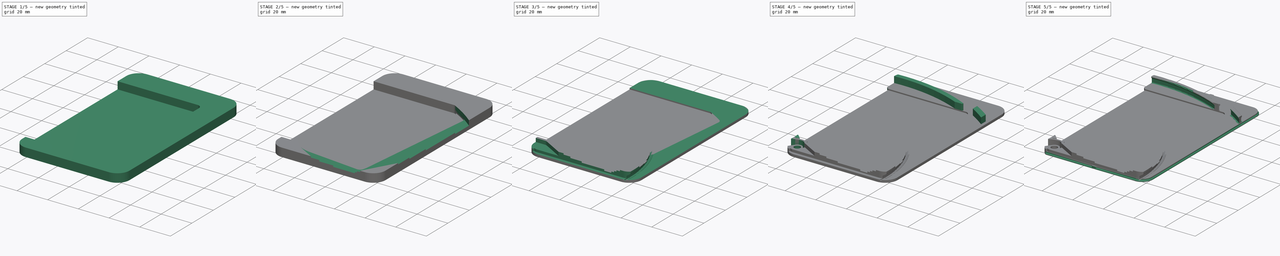
[diagram: build sequence overview — one tinted view per stage of 5, left to right]
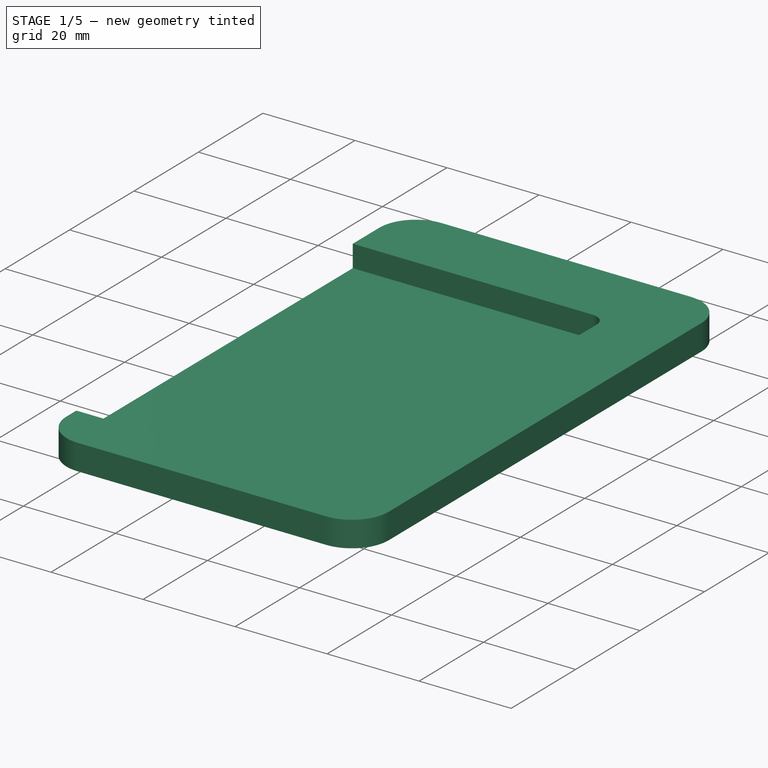
[diagram: stage 1 of 5 — iso view after this stage's code; geometry added in this stage tinted green]
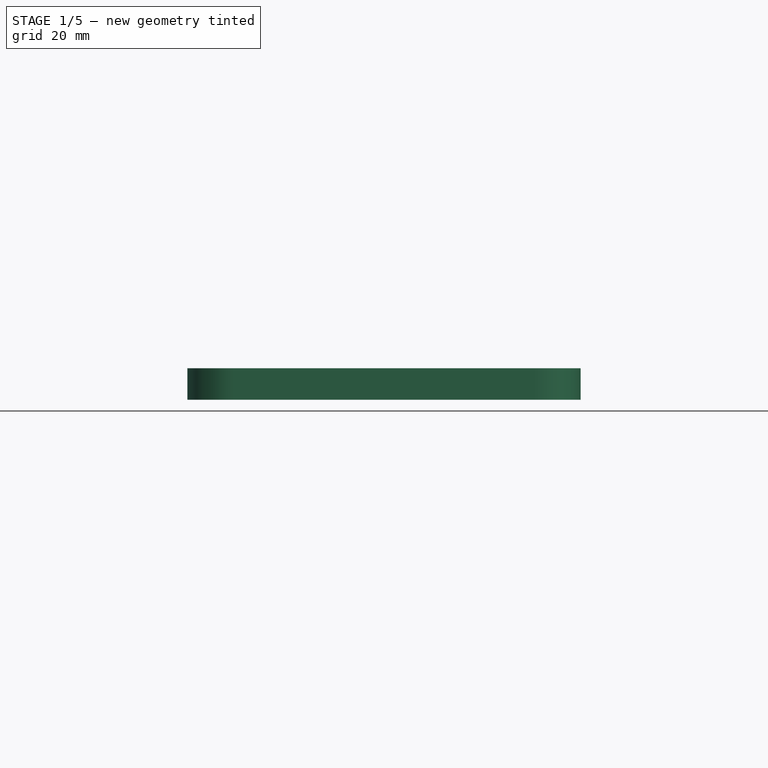
[diagram: stage 1 of 5 — front view after this stage's code; geometry added in this stage tinted green]
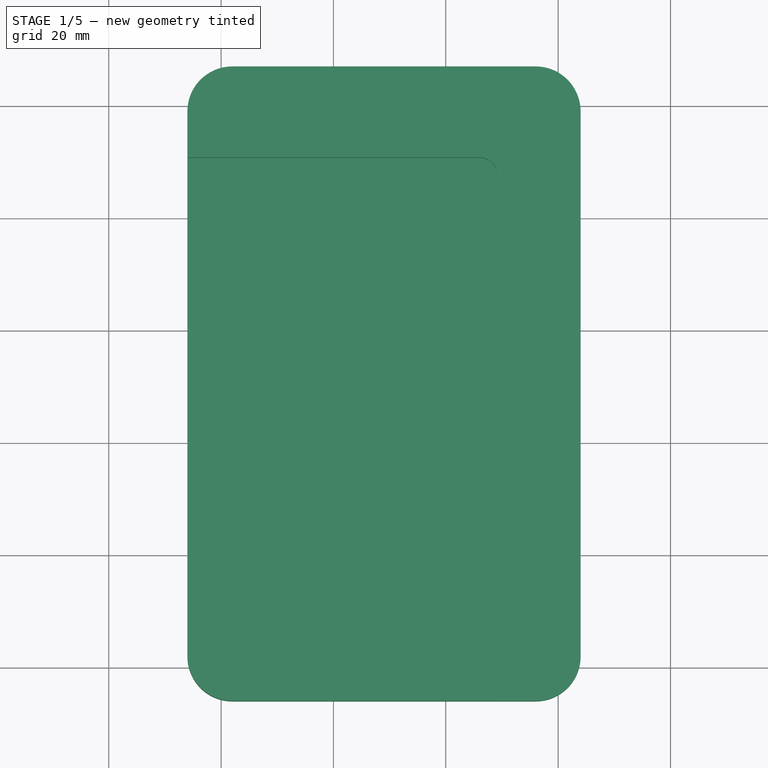
[diagram: stage 1 of 5 — top view after this stage's code; geometry added in this stage tinted green]
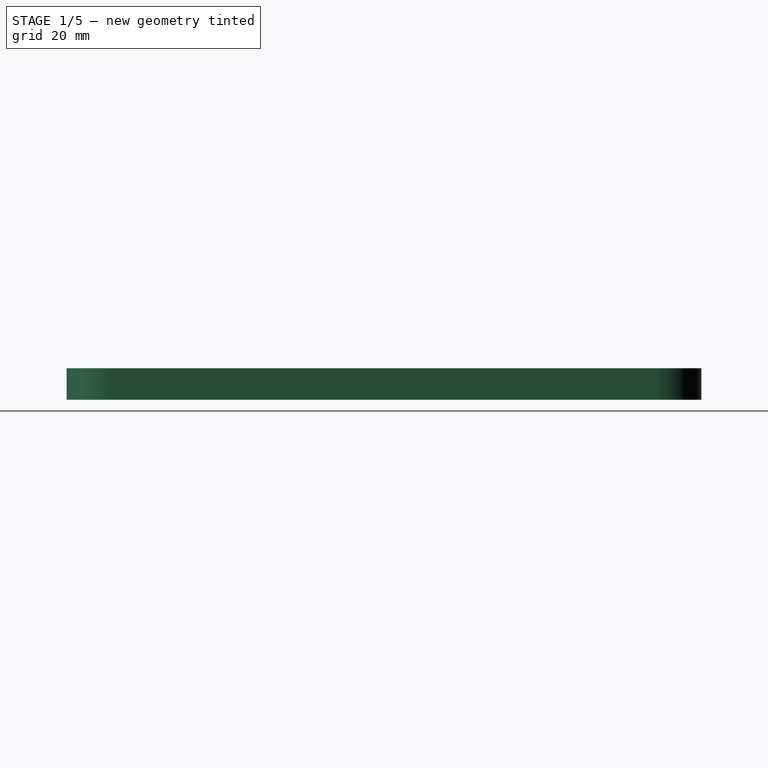
[diagram: stage 1 of 5 — right view after this stage's code; geometry added in this stage tinted green]
FCSTD DOCUMENT  (FreeCAD 0.21R33668 +26 (Git))
Label: Wallter_Slider_Base
License: All rights reserved
LicenseURL: http://en.wikipedia.org/wiki/All_rights_reserved
objects: Sketcher::SketchObject×19, PartDesign::Pocket×9, PartDesign::Pad×4, App::DocumentObjectGroup×3, PartDesign::CoordinateSystem×3, PartDesign::Groove×3, App::Part×2, Spreadsheet::Sheet×1, App::FeaturePython×1, PartDesign::SubtractivePipe×1, PartDesign::Body×1
note: 57 computed .brp shape members not serialized (recipe doc carries the construction recipe); baked Part::Feature solids carry a one-line shape summary decoded from their .brp

FEATURE [Spreadsheet::Sheet] Spreadsheet  label="vars"
  cells = A1='Variable Description; B1='Alias; C1='Value; A2='Tolerancing - FDM in-layer Outer-surface Offset; B2='xyo; C2(xyo)==0 mm; A3='Tolerancing - FDM in-layer Inner-surface Offset; B3='xyi; C3(xyi)==0.35 mm; A4='Tolerancing - FDM ceiling offset; B4='zc; C4(zc)==-0.4 mm; A5='Tolerancing - FDM floor offset; B5='zf; C5(zf)==0 mm; A6='Tolerancing - clearance gap; B6='clearance_gap; C6(clearance_gap)==0.2 mm; A7='Tolerancing - Interference gap; B7='interference_gap; C7(interference_gap)==0 mm; A8='Tolerancing - generic total tolerance; B8='tol; C8(tol)==0.4 mm; A10='Module Separator Wall Thickness; B10='module_separator_wall; C10(module_separator_wall)==0.8 mm; A11='Credit card cavity length; B11='cc_length; C11(cc_length)==<<MasterSketch>>.Constraints.card_length; A12='Credit card cavity width; B12='cc_width; C12(cc_width)==<<MasterSketch>>.Constraints.card_width; A13='Credit card cavity thickness; B13='cc_thickness; C13(cc_thickness)==0.8 mm; A14='Total card angle when fanned out; B14='total_card_angle; C14(total_card_angle)==card_angle * (num_cards - 1); A15='number of cards; B15='num_cards; C15(num_cards)=6; A16='Card separation angle when fanned out; B16='card_angle; C16(card_angle)==<<MasterSketch>>.Constraints.card_angle; A17='Total thickness; B17='thickness; C17(thickness)==module_separator_wall * 2 + cc_thickness * num_cards
FEATURE [App::DocumentObjectGroup] Parts
FEATURE [PartDesign::CoordinateSystem] LCS_Origin  label="LCS_Assembly"
  AttacherType = Attacher::AttachEngine3D
  MapMode = 2
  Support = -> [X_Axis]
FEATURE [App::DocumentObjectGroup] Constraints
FEATURE [App::FeaturePython] Variables  # WARN: FeaturePython — macro-defined, semantics opaque (R4)
  Type = App::PropertyContainer
FEATURE [App::DocumentObjectGroup] Configurations
FEATURE [PartDesign::CoordinateSystem] LCS_0  label="LCS_Part"
  AttacherType = Attacher::AttachEngine3D
  MapMode = 2
  Support = -> [X_Axis001]
FEATURE [PartDesign::CoordinateSystem] LCS_001  label="LCS_Body"
  AttacherType = Attacher::AttachEngine3D
  MapMode = 2
  Support = -> [X_Axis002]
FEATURE [Sketcher::SketchObject] Sketch  label="MasterSketch"
  FullyConstrained = false
  MapMode = 5
  Support = -> [XY_Plane002]
  sketch-geometry (78):
    g0: LineSegment StartX=2 StartY=-6 StartZ=0 EndX=56 EndY=-6 EndZ=0
    g1: LineSegment StartX=64 StartY=2 StartZ=0 EndX=64 EndY=99 EndZ=0
    g2: LineSegment StartX=56 StartY=107 StartZ=0 EndX=2 EndY=107 EndZ=0
    g3: LineSegment StartX=-6 StartY=99 StartZ=0 EndX=-6 EndY=2 EndZ=0
    g4: ArcOfCircle CenterX=2 CenterY=99 CenterZ=0 NormalX=0 NormalY=0 NormalZ=1 AngleXU=0 Radius=8 StartAngle=1.5708 EndAngle=3.14159
    g5: GeomPoint X=-6 Y=107 Z=0
    g6: ArcOfCircle CenterX=56 CenterY=99 CenterZ=0 NormalX=0 NormalY=0 NormalZ=1 AngleXU=0 Radius=8 StartAngle=6e-16 EndAngle=1.5708
    g7: GeomPoint X=64 Y=107 Z=0
    g8: ArcOfCircle CenterX=56 CenterY=2 CenterZ=0 NormalX=0 NormalY=0 NormalZ=1 AngleXU=0 Radius=8 StartAngle=4.71239 EndAngle=6.28319
    g9: GeomPoint X=64 Y=-6 Z=0
    g10: ArcOfCircle CenterX=2 CenterY=2 CenterZ=0 NormalX=0 NormalY=0 NormalZ=1 AngleXU=0 Radius=8 StartAngle=3.14159 EndAngle=4.71239
    g11: GeomPoint X=-6 Y=-6 Z=0
    g12: Circle CenterX=0 CenterY=0 CenterZ=0 NormalX=0 NormalY=0 NormalZ=1 AngleXU=0 Radius=5
    g13: ArcOfCircle CenterX=-2 CenterY=8 CenterZ=0 NormalX=0 NormalY=0 NormalZ=1 AngleXU=0 Radius=3 StartAngle=3.14159 EndAngle=4.71239
    g14: LineSegment StartX=-5 StartY=8 StartZ=0 EndX=-5 EndY=87.8 EndZ=0
    g15: ArcOfCircle CenterX=-2 CenterY=87.8 CenterZ=0 NormalX=0 NormalY=0 NormalZ=1 AngleXU=0 Radius=3 StartAngle=1.5708 EndAngle=3.14159
    g16: LineSegment StartX=-2 StartY=90.8 StartZ=0 EndX=46.1 EndY=90.8 EndZ=0
    g17: ArcOfCircle CenterX=46.1 CenterY=87.8 CenterZ=0 NormalX=0 NormalY=0 NormalZ=1 AngleXU=0 Radius=3 StartAngle=-3.64e-14 EndAngle=1.5708
    g18: LineSegment StartX=49.1 StartY=87.8 StartZ=0 EndX=49.1 EndY=8 EndZ=0
    g19: ArcOfCircle CenterX=46.1 CenterY=8 CenterZ=0 NormalX=0 NormalY=0 NormalZ=1 AngleXU=0 Radius=3 StartAngle=4.71239 EndAngle=6.28319
    g20: LineSegment StartX=46.1 StartY=5 StartZ=0 EndX=-2 EndY=5 EndZ=0
    g21: GeomPoint X=-5 Y=5 Z=0
    g22: GeomPoint X=49.1 Y=90.8 Z=0
    g23: ArcOfCircle CenterX=-1.17187 CenterY=8.16252 CenterZ=0 NormalX=0 NormalY=0 NormalZ=1 AngleXU=0 Radius=3 StartAngle=3.03921 EndAngle=4.61
    g24: LineSegment StartX=-4.15616 StartY=8.46914 StartZ=0 EndX=4 EndY=87.8512 EndZ=0
    g25: ArcOfCircle CenterX=6.98429 CenterY=87.5446 CenterZ=0 NormalX=0 NormalY=0 NormalZ=1 AngleXU=0 Radius=3 StartAngle=1.46841 EndAngle=3.03921
    g26: LineSegment StartX=7.29091 StartY=90.5289 StartZ=0 EndX=55.139 EndY=85.6127 EndZ=0
    g27: ArcOfCircle CenterX=54.8324 CenterY=82.6284 CenterZ=0 NormalX=0 NormalY=0 NormalZ=1 AngleXU=0 Radius=3 StartAngle=6.1808 EndAngle=7.7516
    g28: LineSegment StartX=57.8167 StartY=82.3218 StartZ=0 EndX=49.6605 EndY=2.93972 EndZ=0
    g29: ArcOfCircle CenterX=46.6762 CenterY=3.24634 CenterZ=0 NormalX=0 NormalY=0 NormalZ=1 AngleXU=0 Radius=3 StartAngle=4.61 EndAngle=6.1808
    g30: LineSegment StartX=46.3696 StartY=0.262051 StartZ=0 EndX=-1.47849 EndY=5.17823 EndZ=0
    g31: GeomPoint X=-4.46278 Y=5.48485 Z=0
    g32: GeomPoint X=58.1233 Y=85.3061 Z=0
    g33: ArcOfCircle CenterX=46.7636 CenterY=-1.54132 CenterZ=0 NormalX=0 NormalY=0 NormalZ=1 AngleXU=0 Radius=3 StartAngle=4.50762 EndAngle=6.07841
    g34: LineSegment StartX=46.1536 StartY=-4.47864 StartZ=0 EndX=-0.941492 EndY=5.30223 EndZ=0
    g35: ArcOfCircle CenterX=-0.331459 CenterY=8.23955 CenterZ=0 NormalX=0 NormalY=0 NormalZ=1 AngleXU=0 Radius=3 StartAngle=2.93682 EndAngle=4.50762
    g36: LineSegment StartX=-3.26878 StartY=8.84958 StartZ=0 EndX=12.9581 EndY=86.9823 EndZ=0
    g37: ArcOfCircle CenterX=15.8954 CenterY=86.3723 CenterZ=0 NormalX=0 NormalY=0 NormalZ=1 AngleXU=0 Radius=3 StartAngle=1.36602 EndAngle=2.93682
    g38: LineSegment StartX=16.5055 StartY=89.3096 StartZ=0 EndX=63.6005 EndY=79.5288 EndZ=0
    g39: ArcOfCircle CenterX=62.9905 CenterY=76.5914 CenterZ=0 NormalX=0 NormalY=0 NormalZ=1 AngleXU=0 Radius=3 StartAngle=6.07841 EndAngle=7.64921
    g40: LineSegment StartX=65.9278 StartY=75.9814 StartZ=0 EndX=49.7009 EndY=-2.15135 EndZ=0
    g41: GeomPoint X=49.0909 Y=-5.08868 Z=0
    g42: GeomPoint X=13.5681 Y=89.9197 Z=0
    g43: ArcOfCircle CenterX=24.6401 CenterY=84.2954 CenterZ=0 NormalX=0 NormalY=0 NormalZ=1 AngleXU=0 Radius=3 StartAngle=1.26364 EndAngle=2.83443
    g44: LineSegment StartX=25.5471 StartY=87.1549 StartZ=0 EndX=71.3959 EndY=72.6118 EndZ=0
    g45: ArcOfCircle CenterX=70.4888 CenterY=69.7522 CenterZ=0 NormalX=0 NormalY=0 NormalZ=1 AngleXU=0 Radius=3 StartAngle=5.97603 EndAngle=7.54682
    g46: LineSegment StartX=73.3484 StartY=68.8452 StartZ=0 EndX=49.2208 EndY=-7.21989 EndZ=0
    g47: ArcOfCircle CenterX=46.3612 CenterY=-6.31284 CenterZ=0 NormalX=0 NormalY=0 NormalZ=1 AngleXU=0 Radius=3 StartAngle=4.40523 EndAngle=5.97603
    g48: LineSegment StartX=45.4541 StartY=-9.17243 StartZ=0 EndX=-0.394635 EndY=5.37069 EndZ=0
    g49: ArcOfCircle CenterX=0.51242 CenterY=8.23027 CenterZ=0 NormalX=0 NormalY=0 NormalZ=1 AngleXU=0 Radius=3 StartAngle=2.83443 EndAngle=4.40523
    g50: LineSegment StartX=-2.34717 StartY=9.13733 StartZ=0 EndX=21.7805 EndY=85.2024 EndZ=0
    g51: GeomPoint X=22.6875 Y=88.062 Z=0
    g52: GeomPoint X=48.3137 Y=-10.0795 Z=0
    g53: ArcOfCircle CenterX=33.1267 CenterY=81.3355 CenterZ=0 NormalX=0 NormalY=0 NormalZ=1 AngleXU=0 Radius=3 StartAngle=1.16125 EndAngle=2.73205
    g54: LineSegment StartX=34.3212 StartY=84.0874 StartZ=0 EndX=78.4435 EndY=64.9344 EndZ=0
    g55: ArcOfCircle CenterX=77.2489 CenterY=62.1825 CenterZ=0 NormalX=0 NormalY=0 NormalZ=1 AngleXU=0 Radius=3 StartAngle=5.87364 EndAngle=7.44444
    g56: LineSegment StartX=80.0008 StartY=60.9879 StartZ=0 EndX=48.2251 EndY=-12.2128 EndZ=0
    g57: ArcOfCircle CenterX=45.4732 CenterY=-11.0182 CenterZ=0 NormalX=0 NormalY=0 NormalZ=1 AngleXU=0 Radius=3 StartAngle=4.30284 EndAngle=5.87364
    g58: LineSegment StartX=44.2786 StartY=-13.7701 StartZ=0 EndX=0.156356 EndY=5.38289 EndZ=0
    g59: ArcOfCircle CenterX=1.35093 CenterY=8.1348 CenterZ=0 NormalX=0 NormalY=0 NormalZ=1 AngleXU=0 Radius=3 StartAngle=2.73205 EndAngle=4.30284
    g60: LineSegment StartX=-1.40097 StartY=9.32938 StartZ=0 EndX=30.3747 EndY=82.5301 EndZ=0
    g61: GeomPoint X=31.5693 Y=85.282 Z=0
    g62: GeomPoint X=47.0305 Y=-14.9647 Z=0
    g63: ArcOfCircle CenterX=41.2663 CenterY=77.5238 CenterZ=0 NormalX=0 NormalY=0 NormalZ=1 AngleXU=0 Radius=3 StartAngle=1.05887 EndAngle=2.62966
    g64: LineSegment StartX=42.7359 StartY=80.1392 StartZ=0 EndX=84.6694 EndY=56.5768 EndZ=0
    g65: ArcOfCircle CenterX=83.1999 CenterY=53.9614 CenterZ=0 NormalX=0 NormalY=0 NormalZ=1 AngleXU=0 Radius=3 StartAngle=5.77125 EndAngle=7.34205
    g66: LineSegment StartX=85.8153 StartY=52.4918 StartZ=0 EndX=46.7243 EndY=-17.0778 EndZ=0
    g67: ArcOfCircle CenterX=44.1089 CenterY=-15.6082 CenterZ=0 NormalX=0 NormalY=0 NormalZ=1 AngleXU=0 Radius=3 StartAngle=4.20046 EndAngle=5.77125
    g68: LineSegment StartX=42.6393 StartY=-18.2236 StartZ=0 EndX=0.705709 EndY=5.33872 EndZ=0
    g69: ArcOfCircle CenterX=2.17529 CenterY=7.95412 CenterZ=0 NormalX=0 NormalY=0 NormalZ=1 AngleXU=0 Radius=3 StartAngle=2.62966 EndAngle=4.20046
    g70: LineSegment StartX=-0.440106 StartY=9.42371 StartZ=0 EndX=38.6509 EndY=78.9934 EndZ=0
    g71: GeomPoint X=-311.994 Y=81.2627 Z=0
    g72: GeomPoint X=45.2547 Y=-19.6932 Z=0
    g73: LineSegment StartX=-5 StartY=87.8 StartZ=0 EndX=4 EndY=87.8512 EndZ=0
    g74: LineSegment StartX=4 StartY=87.8512 StartZ=0 EndX=12.9581 EndY=86.9823 EndZ=0
    g75: LineSegment StartX=12.9581 StartY=86.9823 StartZ=0 EndX=21.7805 EndY=85.2024 EndZ=0
    g76: LineSegment StartX=21.7805 StartY=85.2024 StartZ=0 EndX=30.3747 EndY=82.5301 EndZ=0
    g77: LineSegment StartX=30.3747 StartY=82.5301 StartZ=0 EndX=38.6509 EndY=78.9934 EndZ=0
  constraints (183):
    c: Horizontal(g0)
    c: Horizontal(g2)
    c: Vertical(g1)
    c: Vertical(g3)
    c: DistanceX(g5,g7) = 70
    c: DistanceY(g9,g7) = 113
    c: PointOnObject(g5,g2)
    c: PointOnObject(g5,g3)
    c: Tangent(g2,g4) = -1.5708
    c: Tangent(g3,g4) = -1.5708
    c: PointOnObject(g7,g1)
    c: PointOnObject(g7,g2)
    c: Tangent(g1,g6) = -1.5708
    c: Tangent(g2,g6) = -1.5708
    c: PointOnObject(g9,g0)
    c: PointOnObject(g9,g1)
    c: Tangent(g0,g8) = -1.5708
    c: Tangent(g1,g8) = -1.5708
    c: PointOnObject(g11,g0)
    c: PointOnObject(g11,g3)
    c: Tangent(g0,g10) = -1.5708
    c: Tangent(g3,g10) = -1.5708
    c: Equal(g10,g4)
    c: Equal(g4,g6)
    c: Equal(g6,g8)
    c: Radius(g6) = 8
    c: Coincident(g12,g-1)
    c: Diameter(g12) = 10
    c: DistanceY(g0,g12) = 6
    c: DistanceX(g3,g12) = 6
    c: Tangent(g13,g14) = 1.5708
    c: Tangent(g14,g15) = 1.5708
    c: Tangent(g15,g16) = 1.5708
    c: Tangent(g16,g17) = 1.5708
    c: Tangent(g17,g18) = 1.5708
    c: Tangent(g18,g19) = 1.5708
    c: Tangent(g19,g20) = 1.5708
    c: Tangent(g20,g13) = 1.5708
    c: Equal(g13,g15)
    c: Equal(g15,g17)
    c: Equal(g17,g19)
    c: PointOnObject(g21,g14)
    c: PointOnObject(g21,g20)
    c: PointOnObject(g22,g16)
    c: PointOnObject(g22,g18)
    c: Tangent(g23,g24) = 1.5708
    c: Tangent(g24,g25) = 1.5708
    c: Tangent(g25,g26) = 1.5708
    c: Tangent(g26,g27) = 1.5708
    c: Tangent(g27,g28) = 1.5708
    c: Tangent(g28,g29) = 1.5708
    c: Tangent(g29,g30) = 1.5708
    c: Tangent(g30,g23) = 1.5708
    c: Equal(g23,g25)
    c: Equal(g25,g27)
    c: Equal(g27,g29)
    c: PointOnObject(g31,g24)
    c: PointOnObject(g31,g30)
    c: PointOnObject(g32,g26)
    c: PointOnObject(g32,g28)
    c: Tangent(g33,g34) = 1.5708
    c: Tangent(g34,g35) = 1.5708
    c: Tangent(g35,g36) = 1.5708
    c: Tangent(g36,g37) = 1.5708
    c: Tangent(g37,g38) = 1.5708
    c: Tangent(g38,g39) = 1.5708
    c: Tangent(g39,g40) = 1.5708
    c: Tangent(g40,g33) = 1.5708
    c: Equal(g33,g35)
    c: Equal(g35,g37)
    c: Equal(g37,g39)
    c: PointOnObject(g41,g34)
    c: PointOnObject(g41,g40)
    c: PointOnObject(g42,g36)
    c: PointOnObject(g42,g38)
    c: Tangent(g43,g44) = 1.5708
    c: Tangent(g44,g45) = 1.5708
    c: Tangent(g45,g46) = 1.5708
    c: Tangent(g46,g47) = 1.5708
    c: Tangent(g47,g48) = 1.5708
    c: Tangent(g48,g49) = 1.5708
    c: Tangent(g49,g50) = 1.5708
    c: Tangent(g50,g43) = 1.5708
    c: Equal(g43,g45)
    c: Equal(g45,g47)
    c: Equal(g47,g49)
    c: PointOnObject(g51,g44)
    c: PointOnObject(g51,g50)
    c: PointOnObject(g52,g46)
    c: PointOnObject(g52,g48)
    c: Tangent(g53,g54) = 1.5708
    c: Tangent(g54,g55) = 1.5708
    c: Tangent(g55,g56) = 1.5708
    c: Tangent(g56,g57) = 1.5708
    c: Tangent(g57,g58) = 1.5708
    c: Tangent(g58,g59) = 1.5708
    c: Tangent(g59,g60) = 1.5708
    c: Tangent(g60,g53) = 1.5708
    c: Equal(g53,g55)
    c: Equal(g55,g57)
    c: Equal(g57,g59)
    c: PointOnObject(g61,g54)
    c: PointOnObject(g61,g60)
    c: PointOnObject(g62,g56)
    c: PointOnObject(g62,g58)
    c: Tangent(g63,g64) = 1.5708
    c: Tangent(g64,g65) = 1.5708
    c: Tangent(g65,g66) = 1.5708
    c: Tangent(g66,g67) = 1.5708
    c: Tangent(g67,g68) = 1.5708
    c: Tangent(g68,g69) = 1.5708
    c: Tangent(g69,g70) = 1.5708
    c: Tangent(g70,g63) = 1.5708
    c: Equal(g63,g65)
    c: Equal(g65,g67)
    c: Equal(g67,g69)
    c: PointOnObject(g72,g66)
    c: PointOnObject(g72,g68)
    c: Perpendicular(g18,g16)
    c: Perpendicular(g20,g18)
    c: Perpendicular(g20,g14)
    c: Perpendicular(g28,g30)
    c: Perpendicular(g26,g28)
    c: Perpendicular(g24,g26)
    c: Perpendicular(g38,g40)
    c: Perpendicular(g36,g38)
    c: Perpendicular(g34,g36)
    c: Perpendicular(g46,g44)
    c: Perpendicular(g48,g46)
    c: Perpendicular(g48,g50)
    c: Perpendicular(g58,g60)
    c: Perpendicular(g58,g56)
    c: Perpendicular(g56,g54)
    c: Perpendicular(g64,g66)
    c: Perpendicular(g70,g64)
    c: Perpendicular(g68,g70)
    c: Horizontal(g20)
    c: Distance(g13,g18) = 54.1  'card_width'
    c: DistanceY(g19,g16) = 85.8  'card_length'
    c: Radius(g15) = 3
    c: Tangent(g20,g12)
    c: Tangent(g12,g14)
    c: Equal(g16,g26)
    c: Equal(g26,g38)
    c: Equal(g38,g44)
    c: Equal(g15,g25)
    c: Equal(g25,g37)
    c: Equal(g37,g43)
    c: Equal(g43,g53)
    c: Equal(g53,g63)
    c: Equal(g64,g54)
    c: Equal(g54,g44)
    c: Equal(g70,g60)
    c: Equal(g60,g50)
    c: Equal(g50,g36)
    c: Equal(g36,g24)
    c: Equal(g24,g14)
    c: Tangent(g30,g12)
    c: Tangent(g12,g24)
    c: Tangent(g34,g12)
    c: DistanceX(g14,g24) = 9
    c: Angle(g24,g14) = 0.102386  'card_angle'
    c: Tangent(g36,g12)
    c: Coincident(g73,g14)
    c: Coincident(g73,g24)
    c: Coincident(g74,g24)
    c: Coincident(g74,g36)
    c: Coincident(g75,g36)
    c: Coincident(g75,g43)
    c: Equal(g73,g74)
    c: Equal(g74,g75)
    c: Tangent(g50,g12)
    c: Tangent(g48,g12)
    c: Tangent(g12,g58)
    c: Tangent(g12,g60)
    c: Tangent(g68,g12)
    c: Tangent(g12,g70)
    c: Coincident(g76,g43)
    c: Coincident(g76,g53)
    c: Coincident(g77,g53)
    c: Coincident(g77,g63)
    c: Equal(g77,g76)
    c: Equal(g76,g75)
FEATURE [Sketcher::SketchObject] Sketch001
  ExternalGeometry = -> [Sketch]
  FullyConstrained = true
  MapMode = 5
  Support = -> [XY_Plane002]
  sketch-geometry (8):
    g0: ArcOfCircle CenterX=56 CenterY=2 CenterZ=0 NormalX=0 NormalY=0 NormalZ=1 AngleXU=0 Radius=8 StartAngle=4.71239 EndAngle=6.28319
    g1: ArcOfCircle CenterX=2 CenterY=2 CenterZ=0 NormalX=0 NormalY=0 NormalZ=1 AngleXU=0 Radius=8 StartAngle=3.14159 EndAngle=4.71239
    g2: ArcOfCircle CenterX=2 CenterY=99 CenterZ=0 NormalX=0 NormalY=0 NormalZ=1 AngleXU=0 Radius=8 StartAngle=1.5708 EndAngle=3.14159
    g3: ArcOfCircle CenterX=56 CenterY=99 CenterZ=0 NormalX=0 NormalY=0 NormalZ=1 AngleXU=0 Radius=8 StartAngle=2.9e-15 EndAngle=1.5708
    g4: LineSegment StartX=2 StartY=107 StartZ=0 EndX=56 EndY=107 EndZ=0
    g5: LineSegment StartX=64 StartY=99 StartZ=0 EndX=64 EndY=2 EndZ=0
    g6: LineSegment StartX=-6 StartY=2 StartZ=0 EndX=-6 EndY=99 EndZ=0
    g7: LineSegment StartX=2 StartY=-6 StartZ=0 EndX=56 EndY=-6 EndZ=0
  constraints (20):
    c: Coincident(g0,g-6)
    c: Coincident(g0,g-6)
    c: Equal(g-6,g0)
    c: Coincident(g1,g-3)
    c: Coincident(g1,g-3)
    c: Equal(g-3,g1)
    c: Coincident(g2,g-4)
    c: Coincident(g2,g-4)
    c: Equal(g-4,g2)
    c: Coincident(g3,g-5)
    c: Coincident(g3,g-5)
    c: Equal(g3,g-5)
    c: Coincident(g4,g2)
    c: Coincident(g4,g3)
    c: Coincident(g5,g3)
    c: Coincident(g5,g0)
    c: Coincident(g6,g1)
    c: Coincident(g6,g2)
    c: Coincident(g7,g1)
    c: Coincident(g7,g0)
FEATURE [PartDesign::Pad] Pad
  Direction = (0,0,1)
  Length = 5.6
  Length2 = 10
  Profile = -> Sketch001
  ReferenceAxis = -> Sketch001 [N_Axis]
  Type = 0
  expr: Length = <<vars>>.thickness - <<vars>>.module_separator_wall
FEATURE [Sketcher::SketchObject] Sketch002
  ExternalGeometry = -> [Sketch]
  FullyConstrained = true
  MapMode = 5
  Support = -> [XY_Plane002]
  sketch-geometry (8):
    g0: ArcOfCircle CenterX=46.1 CenterY=87.8 CenterZ=0 NormalX=0 NormalY=0 NormalZ=1 AngleXU=0 Radius=3 StartAngle=1.09e-14 EndAngle=1.5708
    g1: ArcOfCircle CenterX=46.1 CenterY=8 CenterZ=0 NormalX=0 NormalY=0 NormalZ=1 AngleXU=0 Radius=3 StartAngle=4.71239 EndAngle=6.28319
    g2: LineSegment StartX=-2 StartY=90.8 StartZ=0 EndX=46.1 EndY=90.8 EndZ=0
    g3: LineSegment StartX=49.1 StartY=87.8 StartZ=0 EndX=49.1 EndY=8 EndZ=0
    g4: LineSegment StartX=-2 StartY=5 StartZ=0 EndX=46.1 EndY=5 EndZ=0
    g5: LineSegment StartX=-2 StartY=5 StartZ=0 EndX=-6 EndY=5 EndZ=0
    g6: LineSegment StartX=-6 StartY=5 StartZ=0 EndX=-6 EndY=90.8 EndZ=0
    g7: LineSegment StartX=-2 StartY=90.8 StartZ=0 EndX=-6 EndY=90.8 EndZ=0
  constraints (20):
    c: Coincident(g0,g-5)
    c: Coincident(g0,g-5)
    c: Equal(g0,g-5)
    c: Coincident(g1,g-4)
    c: Coincident(g1,g-4)
    c: Equal(g-4,g1)
    c: Coincident(g2,g0)
    c: Coincident(g3,g0)
    c: Coincident(g3,g1)
    c: Coincident(g4,g1)
    c: Coincident(g2,g-6)
    c: Coincident(g4,g-3)
    c: Coincident(g5,g4)
    c: Horizontal(g5)
    c: PointOnObject(g5,g-7)
    c: Coincident(g6,g5)
    c: PointOnObject(g6,g-7)
    c: Coincident(g7,g2)
    c: Coincident(g7,g6)
    c: Horizontal(g7)
FEATURE [Sketcher::SketchObject] Sketch003
  ExternalGeometry = -> [Sketch]
  FullyConstrained = true
  MapMode = 5
  Support = -> [XY_Plane002]
  expr: Constraints[15] = <<vars>>.card_angle * 1
  sketch-geometry (18):
    g0: LineSegment StartX=49.6605 StartY=2.93972 StartZ=0 EndX=57.8167 EndY=82.3218 EndZ=0
    g1: ArcOfCircle CenterX=46.1 CenterY=87.8 CenterZ=0 NormalX=0 NormalY=0 NormalZ=1 AngleXU=0 Radius=3 StartAngle=1.0873 EndAngle=1.5708
    g2: LineSegment StartX=46.1 StartY=90.8 StartZ=0 EndX=-2 EndY=90.8 EndZ=0
    g3: ArcOfCircle CenterX=-1.17187 CenterY=8.16252 CenterZ=0 NormalX=0 NormalY=0 NormalZ=1 AngleXU=0 Radius=3 StartAngle=3.03921 EndAngle=4.61
    g4: LineSegment StartX=-4.15616 StartY=8.46914 StartZ=0 EndX=4 EndY=87.8512 EndZ=0
    g5: ArcOfCircle CenterX=6.98429 CenterY=87.5446 CenterZ=0 NormalX=0 NormalY=0 NormalZ=1 AngleXU=0 Radius=3 StartAngle=1.46841 EndAngle=3.03921
    g6: LineSegment StartX=7.29091 StartY=90.5289 StartZ=0 EndX=55.139 EndY=85.6127 EndZ=0
    g7: ArcOfCircle CenterX=54.8324 CenterY=82.6284 CenterZ=0 NormalX=0 NormalY=0 NormalZ=1 AngleXU=0 Radius=3 StartAngle=6.1808 EndAngle=7.7516
    g8: LineSegment StartX=-1.47849 StartY=5.17823 StartZ=0 EndX=46.3696 EndY=0.262051 EndZ=0
    g9: ArcOfCircle CenterX=46.6762 CenterY=3.24634 CenterZ=0 NormalX=0 NormalY=0 NormalZ=1 AngleXU=0 Radius=3 StartAngle=4.61 EndAngle=6.1808
    g10: ArcOfCircle CenterX=0 CenterY=0 CenterZ=0 NormalX=0 NormalY=0 NormalZ=1 AngleXU=0 Radius=5 StartAngle=1.46841 EndAngle=1.5708
    g11: LineSegment StartX=0.511055 StartY=4.97381 StartZ=0 EndX=46.3696 EndY=0.262051 EndZ=0
    g12: ArcOfCircle CenterX=-1.05497e-11 CenterY=0 CenterZ=0 NormalX=0 NormalY=0 NormalZ=1 AngleXU=0 Radius=102.167 StartAngle=0.984918 EndAngle=1.0873
    g13: ArcOfCircle CenterX=54.8324 CenterY=82.6284 CenterZ=0 NormalX=0 NormalY=0 NormalZ=1 AngleXU=0 Radius=3 StartAngle=6.1808 EndAngle=7.2681
    g14: LineSegment StartX=-2 StartY=5 StartZ=0 EndX=4.288e-13 EndY=5 EndZ=0
    g15: ArcOfCircle CenterX=-2 CenterY=8 CenterZ=0 NormalX=0 NormalY=0 NormalZ=1 AngleXU=0 Radius=3 StartAngle=3.14159 EndAngle=4.71239
    g16: LineSegment StartX=-5 StartY=8 StartZ=0 EndX=-5 EndY=87.8 EndZ=0
    g17: ArcOfCircle CenterX=-2 CenterY=87.8 CenterZ=0 NormalX=0 NormalY=0 NormalZ=1 AngleXU=0 Radius=3 StartAngle=1.5708 EndAngle=3.14159
  constraints (44):
    c: Coincident(g1,g-5)
    c: Equal(g-5,g1)
    c: Tangent(g4,g3) = 1.5708
    c: Equal(g3,g-11)
    c: Tangent(g9,g0) = -1.5708
    c: Perpendicular(g6,g0)
    c: Perpendicular(g4,g6)
    c: Equal(g4,g0)
    c: Tangent(g8,g3) = -1.5708
    c: Tangent(g6,g5) = 1.5708
    c: Tangent(g5,g4) = 1.5708
    c: Equal(g5,g7)
    c: Equal(g5,g3)
    c: Equal(g-8,g0)
    c: Tangent(g4,g-4)
    c: Angle(g4,g-10) = 0.102386
    c: Tangent(g2,g1) = -1.5708
    c: Tangent(g6,g7) = 1.5708
    c: Equal(g8,g-3)
    c: Tangent(g9,g8) = -1.5708
    c: Equal(g9,g3)
    c: Tangent(g7,g0) = -1.5708
    c: Tangent(g8,g-4)
    c: PointOnObject(g14,g-3)
    c: Coincident(g10,g-4)
    c: PointOnObject(g10,g8)
    c: Coincident(g11,g10)
    c: Coincident(g11,g9)
    c: Tangent(g13,g0) = -1.5708
    c: Equal(g7,g13)
    c: Tangent(g13,g12) = -1.5708
    c: Tangent(g12,g1) = -1.5708
    c: PointOnObject(g12,g-1)
    c: Coincident(g14,g-11)
    c: Tangent(g10,g14) = 1.5708
    c: Coincident(g15,g14)
    c: Coincident(g15,g-11)
    c: Equal(g15,g-11)
    c: Coincident(g16,g15)
    c: Coincident(g16,g-10)
    c: Coincident(g17,g16)
    c: Equal(g17,g-12)
    c: Coincident(g17,g-12)
    c: Coincident(g2,g17)
FEATURE [PartDesign::Pocket] Pocket  label="Card1"
  BaseFeature = -> Pad
  Direction = (0,0,-1)
  Length = 5.6
  Length2 = -0.8
  Profile = -> Sketch002
  ReferenceAxis = -> Sketch002 [N_Axis]
  Reversed = true
  Type = 4
  expr: Length = <<vars>>.thickness - <<vars>>.module_separator_wall
  expr: Length2 = -<<vars>>.module_separator_wall
FEATURE [PartDesign::Pocket] Pocket001  label="Card2"
  BaseFeature = -> Pocket
  Direction = (0,0,-1)
  Length = 2.4
  Length2 = -1.6
  Profile = -> Sketch003
  ReferenceAxis = -> Sketch003 [N_Axis]
  Reversed = true
  Type = 4
  expr: Length = <<vars>>.module_separator_wall + 2 * <<vars>>.cc_thickness
  expr: Length2 = -(<<vars>>.module_separator_wall + <<vars>>.cc_thickness)
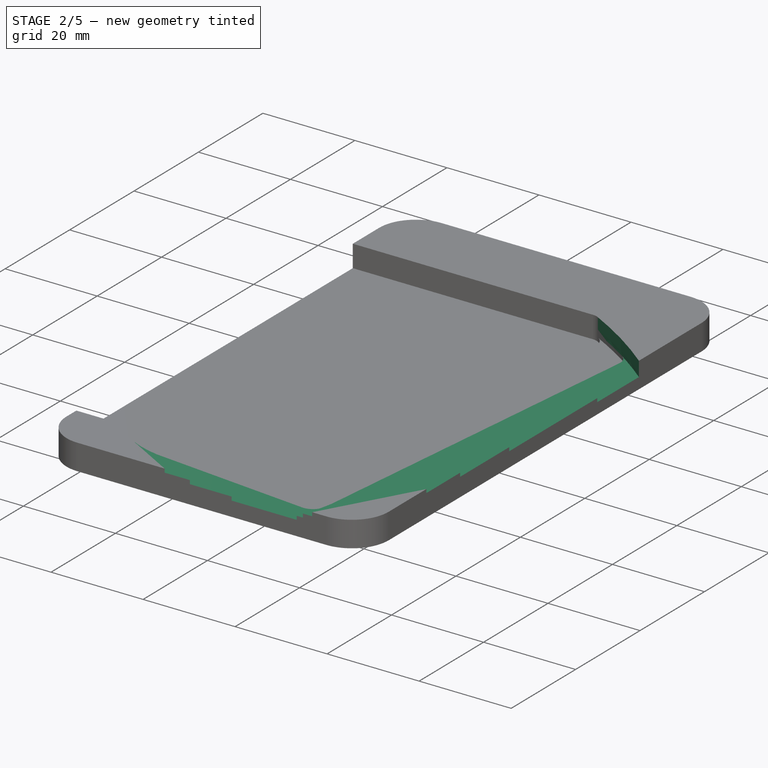
[diagram: stage 2 of 5 — iso view after this stage's code; geometry added in this stage tinted green]
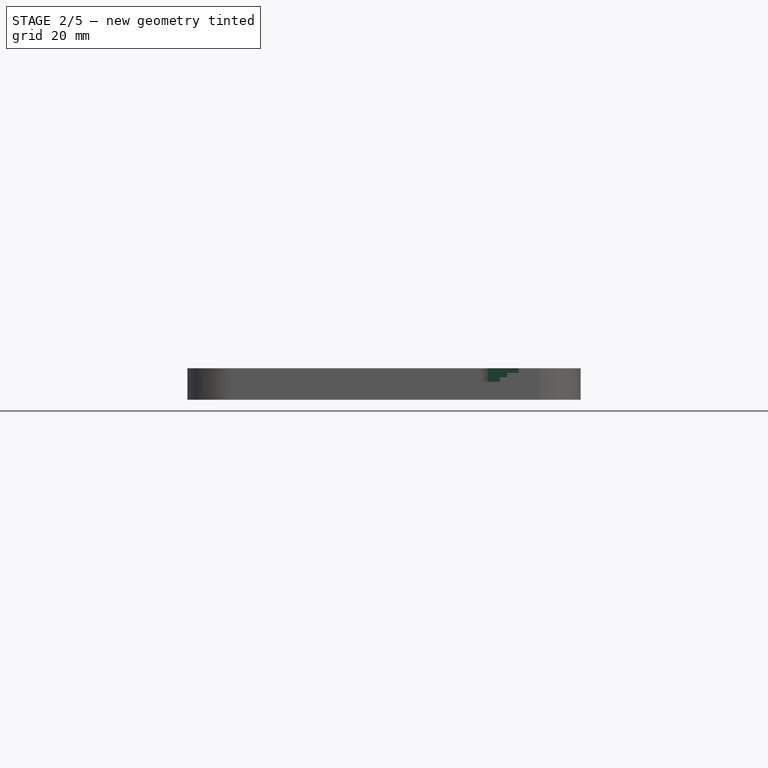
[diagram: stage 2 of 5 — front view after this stage's code; geometry added in this stage tinted green]
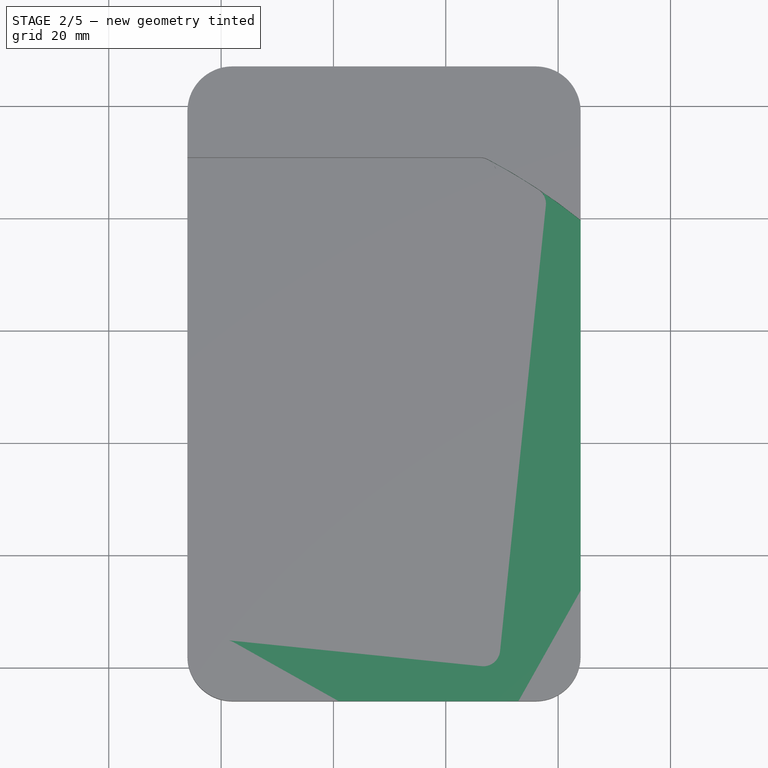
[diagram: stage 2 of 5 — top view after this stage's code; geometry added in this stage tinted green]
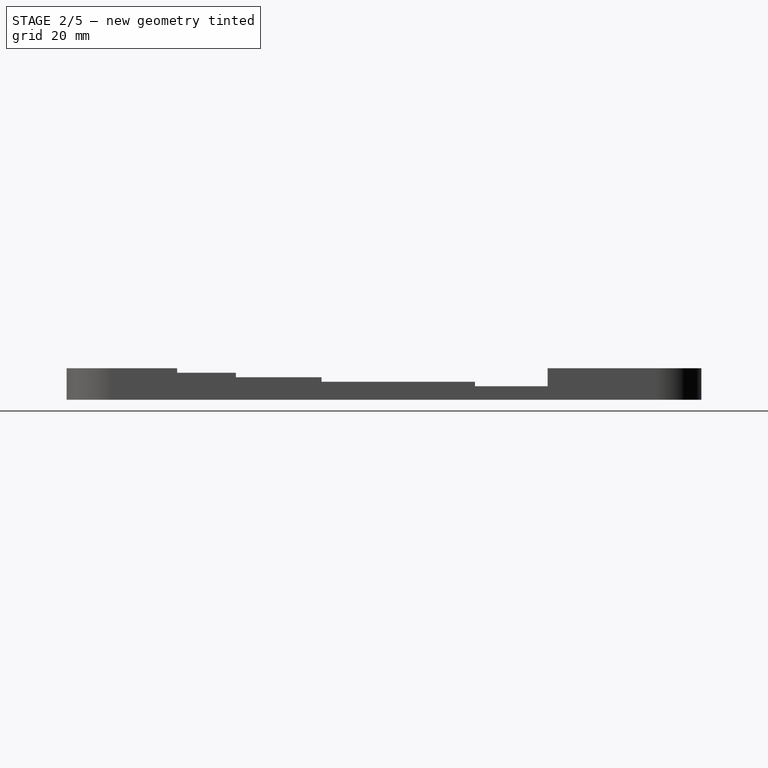
[diagram: stage 2 of 5 — right view after this stage's code; geometry added in this stage tinted green]
FEATURE [Sketcher::SketchObject] Sketch004
  ExternalGeometry = -> [Sketch]
  FullyConstrained = true
  MapMode = 5
  Support = -> [XY_Plane002]
  expr: Constraints[15] = <<vars>>.card_angle * 2
  sketch-geometry (18):
    g0: LineSegment StartX=49.7009 StartY=-2.15135 StartZ=0 EndX=65.9278 EndY=75.9814 EndZ=0
    g1: ArcOfCircle CenterX=46.1 CenterY=87.8 CenterZ=0 NormalX=0 NormalY=0 NormalZ=1 AngleXU=0 Radius=3 StartAngle=1.0873 EndAngle=1.5708
    g2: LineSegment StartX=46.1 StartY=90.8 StartZ=0 EndX=-2 EndY=90.8 EndZ=0
    g3: ArcOfCircle CenterX=-0.331459 CenterY=8.23955 CenterZ=0 NormalX=0 NormalY=0 NormalZ=1 AngleXU=0 Radius=3 StartAngle=2.93682 EndAngle=4.50762
    g4: LineSegment StartX=-3.26878 StartY=8.84958 StartZ=0 EndX=12.9581 EndY=86.9823 EndZ=0
    g5: ArcOfCircle CenterX=15.8954 CenterY=86.3723 CenterZ=0 NormalX=0 NormalY=0 NormalZ=1 AngleXU=0 Radius=3 StartAngle=1.36602 EndAngle=2.93682
    g6: LineSegment StartX=16.5055 StartY=89.3096 StartZ=0 EndX=63.6005 EndY=79.5288 EndZ=0
    g7: ArcOfCircle CenterX=62.9905 CenterY=76.5914 CenterZ=0 NormalX=0 NormalY=0 NormalZ=1 AngleXU=0 Radius=3 StartAngle=6.07841 EndAngle=7.64921
    g8: LineSegment StartX=-0.941492 StartY=5.30223 StartZ=0 EndX=46.1536 EndY=-4.47864 EndZ=0
    g9: ArcOfCircle CenterX=46.7636 CenterY=-1.54132 CenterZ=0 NormalX=0 NormalY=0 NormalZ=1 AngleXU=0 Radius=3 StartAngle=4.50762 EndAngle=6.07841
    g10: LineSegment StartX=-2 StartY=5 StartZ=0 EndX=4.288e-13 EndY=5 EndZ=0
    g11: ArcOfCircle CenterX=0 CenterY=0 CenterZ=0 NormalX=0 NormalY=0 NormalZ=1 AngleXU=0 Radius=5 StartAngle=1.36602 EndAngle=1.5708
    g12: LineSegment StartX=1.01674 StartY=4.89553 StartZ=0 EndX=46.1536 EndY=-4.47864 EndZ=0
    g13: ArcOfCircle CenterX=-5.4192e-12 CenterY=0 CenterZ=0 NormalX=0 NormalY=0 NormalZ=1 AngleXU=0 Radius=102.167 StartAngle=0.882532 EndAngle=1.0873
    g14: ArcOfCircle CenterX=62.9905 CenterY=76.5914 CenterZ=0 NormalX=0 NormalY=0 NormalZ=1 AngleXU=0 Radius=3 StartAngle=6.07841 EndAngle=7.16572
    g15: ArcOfCircle CenterX=-2 CenterY=8 CenterZ=0 NormalX=0 NormalY=0 NormalZ=1 AngleXU=0 Radius=3 StartAngle=3.14159 EndAngle=4.71239
    g16: LineSegment StartX=-5 StartY=8 StartZ=0 EndX=-5 EndY=87.8 EndZ=0
    g17: ArcOfCircle CenterX=-2 CenterY=87.8 CenterZ=0 NormalX=0 NormalY=0 NormalZ=1 AngleXU=0 Radius=3 StartAngle=1.5708 EndAngle=3.14159
  constraints (44):
    c: Coincident(g1,g-5)
    c: Equal(g-5,g1)
    c: Tangent(g4,g3) = 1.5708
    c: Equal(g3,g-11)
    c: Tangent(g9,g0) = -1.5708
    c: Perpendicular(g6,g0)
    c: Perpendicular(g4,g6)
    c: Equal(g4,g0)
    c: Tangent(g8,g3) = -1.5708
    c: Tangent(g6,g5) = 1.5708
    c: Tangent(g5,g4) = 1.5708
    c: Equal(g5,g7)
    c: Equal(g5,g3)
    c: Equal(g-8,g0)
    c: Tangent(g4,g-4)
    c: Angle(g4,g-10) = 0.204773
    c: Tangent(g2,g1) = -1.5708
    c: Tangent(g6,g7) = 1.5708
    c: Equal(g8,g-3)
    c: Tangent(g9,g8) = -1.5708
    c: Equal(g9,g3)
    c: Tangent(g7,g0) = -1.5708
    c: Tangent(g8,g-4)
    c: PointOnObject(g10,g-3)
    c: Coincident(g11,g-4)
    c: PointOnObject(g11,g8)
    c: Coincident(g12,g11)
    c: Coincident(g12,g9)
    c: Tangent(g11,g10) = 1.5708
    c: Tangent(g14,g0) = -1.5708
    c: Equal(g7,g14)
    c: Tangent(g14,g13) = -1.5708
    c: Tangent(g13,g1) = -1.5708
    c: PointOnObject(g13,g-1)
    c: Coincident(g15,g-11)
    c: Coincident(g15,g-11)
    c: Equal(g-11,g15)
    c: Coincident(g10,g15)
    c: Coincident(g16,g15)
    c: Coincident(g16,g-10)
    c: Coincident(g17,g16)
    c: Coincident(g17,g-7)
    c: Equal(g-12,g17)
    c: Coincident(g2,g17)
FEATURE [Sketcher::SketchObject] Sketch005
  ExternalGeometry = -> [Sketch]
  FullyConstrained = true
  MapMode = 5
  Support = -> [XY_Plane002]
  expr: Constraints[15] = <<vars>>.card_angle * 3
  sketch-geometry (18):
    g0: LineSegment StartX=49.2208 StartY=-7.21989 StartZ=0 EndX=73.3484 EndY=68.8452 EndZ=0
    g1: ArcOfCircle CenterX=46.1 CenterY=87.8 CenterZ=0 NormalX=0 NormalY=0 NormalZ=1 AngleXU=0 Radius=3 StartAngle=1.0873 EndAngle=1.5708
    g2: LineSegment StartX=46.1 StartY=90.8 StartZ=0 EndX=-2 EndY=90.8 EndZ=0
    g3: ArcOfCircle CenterX=0.51242 CenterY=8.23027 CenterZ=0 NormalX=0 NormalY=0 NormalZ=1 AngleXU=0 Radius=3 StartAngle=2.83443 EndAngle=4.40523
    g4: LineSegment StartX=-2.34717 StartY=9.13733 StartZ=0 EndX=21.7805 EndY=85.2024 EndZ=0
    g5: ArcOfCircle CenterX=24.6401 CenterY=84.2954 CenterZ=0 NormalX=0 NormalY=0 NormalZ=1 AngleXU=0 Radius=3 StartAngle=1.26364 EndAngle=2.83443
    g6: LineSegment StartX=25.5471 StartY=87.1549 StartZ=0 EndX=71.3959 EndY=72.6118 EndZ=0
    g7: ArcOfCircle CenterX=70.4888 CenterY=69.7522 CenterZ=0 NormalX=0 NormalY=0 NormalZ=1 AngleXU=0 Radius=3 StartAngle=5.97603 EndAngle=7.54682
    g8: LineSegment StartX=-0.394635 StartY=5.37069 StartZ=0 EndX=45.4541 EndY=-9.17243 EndZ=0
    g9: ArcOfCircle CenterX=46.3612 CenterY=-6.31284 CenterZ=0 NormalX=0 NormalY=0 NormalZ=1 AngleXU=0 Radius=3 StartAngle=4.40523 EndAngle=5.97603
    g10: LineSegment StartX=-2 StartY=5 StartZ=0 EndX=4.288e-13 EndY=5 EndZ=0
    g11: ArcOfCircle CenterX=0 CenterY=0 CenterZ=0 NormalX=0 NormalY=0 NormalZ=1 AngleXU=0 Radius=5 StartAngle=1.26363 EndAngle=1.5708
    g12: LineSegment StartX=1.51177 StartY=4.76598 StartZ=0 EndX=45.4541 EndY=-9.17243 EndZ=0
    g13: ArcOfCircle CenterX=-3.673e-12 CenterY=0 CenterZ=0 NormalX=0 NormalY=0 NormalZ=1 AngleXU=0 Radius=102.167 StartAngle=0.780146 EndAngle=1.0873
    g14: ArcOfCircle CenterX=70.4888 CenterY=69.7522 CenterZ=0 NormalX=0 NormalY=0 NormalZ=1 AngleXU=0 Radius=3 StartAngle=5.97603 EndAngle=7.06333
    g15: ArcOfCircle CenterX=-2 CenterY=8 CenterZ=0 NormalX=0 NormalY=0 NormalZ=1 AngleXU=0 Radius=3 StartAngle=3.14159 EndAngle=4.71239
    g16: LineSegment StartX=-5 StartY=8 StartZ=0 EndX=-5 EndY=87.8 EndZ=0
    g17: ArcOfCircle CenterX=-2 CenterY=87.8 CenterZ=0 NormalX=0 NormalY=0 NormalZ=1 AngleXU=0 Radius=3 StartAngle=1.5708 EndAngle=3.14159
  constraints (44):
    c: Coincident(g1,g-5)
    c: Equal(g-5,g1)
    c: Tangent(g4,g3) = 1.5708
    c: Equal(g3,g-11)
    c: Tangent(g9,g0) = -1.5708
    c: Perpendicular(g6,g0)
    c: Perpendicular(g4,g6)
    c: Equal(g4,g0)
    c: Tangent(g8,g3) = -1.5708
    c: Tangent(g6,g5) = 1.5708
    c: Tangent(g5,g4) = 1.5708
    c: Equal(g5,g7)
    c: Equal(g5,g3)
    c: Equal(g-8,g0)
    c: Tangent(g4,g-4)
    c: Angle(g4,g-10) = 0.307159
    c: Tangent(g2,g1) = -1.5708
    c: Tangent(g6,g7) = 1.5708
    c: Equal(g8,g-3)
    c: Tangent(g9,g8) = -1.5708
    c: Equal(g9,g3)
    c: Tangent(g7,g0) = -1.5708
    c: Tangent(g8,g-4)
    c: PointOnObject(g10,g-3)
    c: Coincident(g11,g-4)
    c: PointOnObject(g11,g8)
    c: Coincident(g12,g11)
    c: Coincident(g12,g9)
    c: Tangent(g11,g10) = 1.5708
    c: Tangent(g14,g0) = -1.5708
    c: Equal(g7,g14)
    c: Tangent(g14,g13) = -1.5708
    c: Tangent(g13,g1) = -1.5708
    c: PointOnObject(g13,g-1)
    c: Coincident(g15,g-11)
    c: Coincident(g15,g-11)
    c: Equal(g-11,g15)
    c: Coincident(g10,g15)
    c: Coincident(g16,g15)
    c: Coincident(g16,g-10)
    c: Coincident(g17,g16)
    c: Coincident(g17,g-7)
    c: Equal(g-12,g17)
    c: Coincident(g2,g17)
FEATURE [Sketcher::SketchObject] Sketch006
  ExternalGeometry = -> [Sketch]
  FullyConstrained = true
  MapMode = 5
  Support = -> [XY_Plane002]
  expr: Constraints[15] = <<vars>>.card_angle * 4
  sketch-geometry (18):
    g0: LineSegment StartX=48.2251 StartY=-12.2128 StartZ=0 EndX=80.0008 EndY=60.9879 EndZ=0
    g1: ArcOfCircle CenterX=46.1 CenterY=87.8 CenterZ=0 NormalX=0 NormalY=0 NormalZ=1 AngleXU=0 Radius=3 StartAngle=1.0873 EndAngle=1.5708
    g2: LineSegment StartX=46.1 StartY=90.8 StartZ=0 EndX=-2 EndY=90.8 EndZ=0
    g3: ArcOfCircle CenterX=1.35093 CenterY=8.1348 CenterZ=0 NormalX=0 NormalY=0 NormalZ=1 AngleXU=0 Radius=3 StartAngle=2.73205 EndAngle=4.30284
    g4: LineSegment StartX=-1.40097 StartY=9.32938 StartZ=0 EndX=30.3747 EndY=82.5301 EndZ=0
    g5: ArcOfCircle CenterX=33.1267 CenterY=81.3355 CenterZ=0 NormalX=0 NormalY=0 NormalZ=1 AngleXU=0 Radius=3 StartAngle=1.16125 EndAngle=2.73205
    g6: LineSegment StartX=34.3212 StartY=84.0874 StartZ=0 EndX=78.4435 EndY=64.9344 EndZ=0
    g7: ArcOfCircle CenterX=77.2489 CenterY=62.1825 CenterZ=0 NormalX=0 NormalY=0 NormalZ=1 AngleXU=0 Radius=3 StartAngle=5.87364 EndAngle=7.44444
    g8: LineSegment StartX=0.156356 StartY=5.38289 StartZ=0 EndX=44.2786 EndY=-13.7701 EndZ=0
    g9: ArcOfCircle CenterX=45.4732 CenterY=-11.0182 CenterZ=0 NormalX=0 NormalY=0 NormalZ=1 AngleXU=0 Radius=3 StartAngle=4.30284 EndAngle=5.87364
    g10: LineSegment StartX=-2 StartY=5 StartZ=0 EndX=4.288e-13 EndY=5 EndZ=0
    g11: ArcOfCircle CenterX=0 CenterY=0 CenterZ=0 NormalX=0 NormalY=0 NormalZ=1 AngleXU=0 Radius=5 StartAngle=1.16125 EndAngle=1.5708
    g12: LineSegment StartX=1.99098 StartY=4.5865 StartZ=0 EndX=44.2786 EndY=-13.7701 EndZ=0
    g13: ArcOfCircle CenterX=-2.9096e-12 CenterY=0 CenterZ=0 NormalX=0 NormalY=0 NormalZ=1 AngleXU=0 Radius=102.167 StartAngle=0.67776 EndAngle=1.0873
    g14: ArcOfCircle CenterX=77.2489 CenterY=62.1825 CenterZ=0 NormalX=0 NormalY=0 NormalZ=1 AngleXU=0 Radius=3 StartAngle=5.87364 EndAngle=6.96094
    g15: ArcOfCircle CenterX=-2 CenterY=8 CenterZ=0 NormalX=0 NormalY=0 NormalZ=1 AngleXU=0 Radius=3 StartAngle=3.14159 EndAngle=4.71239
    g16: LineSegment StartX=-5 StartY=8 StartZ=0 EndX=-5 EndY=87.8 EndZ=0
    g17: ArcOfCircle CenterX=-2 CenterY=87.8 CenterZ=0 NormalX=0 NormalY=0 NormalZ=1 AngleXU=0 Radius=3 StartAngle=1.5708 EndAngle=3.14159
  constraints (44):
    c: Coincident(g1,g-5)
    c: Equal(g-5,g1)
    c: Tangent(g4,g3) = 1.5708
    c: Equal(g3,g-11)
    c: Tangent(g9,g0) = -1.5708
    c: Perpendicular(g6,g0)
    c: Perpendicular(g4,g6)
    c: Equal(g4,g0)
    c: Tangent(g8,g3) = -1.5708
    c: Tangent(g6,g5) = 1.5708
    c: Tangent(g5,g4) = 1.5708
    c: Equal(g5,g7)
    c: Equal(g5,g3)
    c: Equal(g-8,g0)
    c: Tangent(g4,g-4)
    c: Angle(g4,g-10) = 0.409545
    c: Tangent(g2,g1) = -1.5708
    c: Tangent(g6,g7) = 1.5708
    c: Equal(g8,g-3)
    c: Tangent(g9,g8) = -1.5708
    c: Equal(g9,g3)
    c: Tangent(g7,g0) = -1.5708
    c: Tangent(g8,g-4)
    c: PointOnObject(g10,g-3)
    c: Coincident(g11,g-4)
    c: PointOnObject(g11,g8)
    c: Coincident(g12,g11)
    c: Coincident(g12,g9)
    c: Tangent(g11,g10) = 1.5708
    c: Tangent(g14,g0) = -1.5708
    c: Equal(g7,g14)
    c: Tangent(g14,g13) = -1.5708
    c: Tangent(g13,g1) = -1.5708
    c: PointOnObject(g13,g-1)
    c: Coincident(g15,g-11)
    c: Coincident(g15,g-11)
    c: Equal(g-11,g15)
    c: Coincident(g15,g10)
    c: Coincident(g16,g15)
    c: Coincident(g16,g-10)
    c: Coincident(g17,g16)
    c: Coincident(g17,g-12)
    c: Equal(g17,g-12)
    c: Coincident(g2,g17)
FEATURE [Sketcher::SketchObject] Sketch007
  ExternalGeometry = -> [Sketch]
  FullyConstrained = true
  MapMode = 5
  Support = -> [XY_Plane002]
  expr: Constraints[15] = <<vars>>.card_angle * 5
  sketch-geometry (18):
    g0: LineSegment StartX=46.7243 StartY=-17.0778 StartZ=0 EndX=85.8153 EndY=52.4918 EndZ=0
    g1: ArcOfCircle CenterX=46.1 CenterY=87.8 CenterZ=0 NormalX=0 NormalY=0 NormalZ=1 AngleXU=0 Radius=3 StartAngle=1.0873 EndAngle=1.5708
    g2: LineSegment StartX=46.1 StartY=90.8 StartZ=0 EndX=-2 EndY=90.8 EndZ=0
    g3: ArcOfCircle CenterX=2.17529 CenterY=7.95412 CenterZ=0 NormalX=0 NormalY=0 NormalZ=1 AngleXU=0 Radius=3 StartAngle=2.62966 EndAngle=4.20046
    g4: LineSegment StartX=-0.440106 StartY=9.42371 StartZ=0 EndX=38.6509 EndY=78.9934 EndZ=0
    g5: ArcOfCircle CenterX=41.2663 CenterY=77.5238 CenterZ=0 NormalX=0 NormalY=0 NormalZ=1 AngleXU=0 Radius=3 StartAngle=1.05887 EndAngle=2.62966
    g6: LineSegment StartX=42.7359 StartY=80.1392 StartZ=0 EndX=84.6694 EndY=56.5768 EndZ=0
    g7: ArcOfCircle CenterX=83.1999 CenterY=53.9614 CenterZ=0 NormalX=0 NormalY=0 NormalZ=1 AngleXU=0 Radius=3 StartAngle=5.77125 EndAngle=7.34205
    g8: LineSegment StartX=0.705709 StartY=5.33872 StartZ=0 EndX=42.6393 EndY=-18.2236 EndZ=0
    g9: ArcOfCircle CenterX=44.1089 CenterY=-15.6082 CenterZ=0 NormalX=0 NormalY=0 NormalZ=1 AngleXU=0 Radius=3 StartAngle=4.20046 EndAngle=5.77125
    g10: LineSegment StartX=-2 StartY=5 StartZ=0 EndX=4.288e-13 EndY=5 EndZ=0
    g11: ArcOfCircle CenterX=0 CenterY=0 CenterZ=0 NormalX=0 NormalY=0 NormalZ=1 AngleXU=0 Radius=5 StartAngle=1.05886 EndAngle=1.5708
    g12: LineSegment StartX=2.44933 StartY=4.35899 StartZ=0 EndX=42.6393 EndY=-18.2236 EndZ=0
    g13: ArcOfCircle CenterX=-2.4087e-12 CenterY=0 CenterZ=0 NormalX=0 NormalY=0 NormalZ=1 AngleXU=0 Radius=102.167 StartAngle=0.575373 EndAngle=1.0873
    g14: ArcOfCircle CenterX=83.1999 CenterY=53.9614 CenterZ=0 NormalX=0 NormalY=0 NormalZ=1 AngleXU=0 Radius=3 StartAngle=5.77125 EndAngle=6.85856
    g15: ArcOfCircle CenterX=-2 CenterY=8 CenterZ=0 NormalX=0 NormalY=0 NormalZ=1 AngleXU=0 Radius=3 StartAngle=3.14159 EndAngle=4.71239
    g16: LineSegment StartX=-5 StartY=8 StartZ=0 EndX=-5 EndY=87.8 EndZ=0
    g17: ArcOfCircle CenterX=-2 CenterY=87.8 CenterZ=0 NormalX=0 NormalY=0 NormalZ=1 AngleXU=0 Radius=3 StartAngle=1.5708 EndAngle=3.14159
  constraints (44):
    c: Coincident(g1,g-5)
    c: Equal(g-5,g1)
    c: Tangent(g4,g3) = 1.5708
    c: Equal(g3,g-11)
    c: Tangent(g9,g0) = -1.5708
    c: Perpendicular(g6,g0)
    c: Perpendicular(g4,g6)
    c: Equal(g4,g0)
    c: Tangent(g8,g3) = -1.5708
    c: Tangent(g6,g5) = 1.5708
    c: Tangent(g5,g4) = 1.5708
    c: Equal(g5,g7)
    c: Equal(g5,g3)
    c: Equal(g-8,g0)
    c: Tangent(g4,g-4)
    c: Angle(g4,g-10) = 0.511931
    c: Tangent(g2,g1) = -1.5708
    c: Tangent(g6,g7) = 1.5708
    c: Equal(g8,g-3)
    c: Tangent(g9,g8) = -1.5708
    c: Equal(g9,g3)
    c: Tangent(g7,g0) = -1.5708
    c: Tangent(g8,g-4)
    c: PointOnObject(g10,g-3)
    c: Coincident(g11,g-4)
    c: PointOnObject(g11,g8)
    c: Coincident(g12,g11)
    c: Coincident(g12,g9)
    c: Tangent(g11,g10) = 1.5708
    c: Tangent(g14,g0) = -1.5708
    c: Equal(g7,g14)
    c: Tangent(g14,g13) = -1.5708
    c: Tangent(g13,g1) = -1.5708
    c: PointOnObject(g13,g-1)
    c: Coincident(g15,g-11)
    c: Coincident(g15,g-11)
    c: Equal(g15,g-11)
    c: Coincident(g10,g15)
    c: Coincident(g16,g15)
    c: Coincident(g16,g-10)
    c: Coincident(g17,g16)
    c: Coincident(g17,g-12)
    c: Equal(g-12,g17)
    c: Coincident(g17,g2)
FEATURE [PartDesign::Pocket] Pocket002  label="Card3"
  BaseFeature = -> Pocket001
  Direction = (0,0,-1)
  Length = 3.2
  Length2 = -2.4
  Profile = -> Sketch004
  ReferenceAxis = -> Sketch004 [N_Axis]
  Reversed = true
  Type = 4
  expr: Length = <<vars>>.module_separator_wall + <<vars>>.cc_thickness * 3
  expr: Length2 = -(<<vars>>.module_separator_wall + <<vars>>.cc_thickness * 2)
FEATURE [PartDesign::Pocket] Pocket003  label="Card4"
  BaseFeature = -> Pocket002
  Direction = (0,0,-1)
  Length = 4
  Length2 = -3.2
  Profile = -> Sketch005
  ReferenceAxis = -> Sketch005 [N_Axis]
  Reversed = true
  Type = 4
  expr: Length = <<vars>>.module_separator_wall + <<vars>>.cc_thickness * 4
  expr: Length2 = -(<<vars>>.module_separator_wall + <<vars>>.cc_thickness * 3)
FEATURE [PartDesign::Pocket] Pocket004  label="Card5"
  BaseFeature = -> Pocket003
  Direction = (0,0,-1)
  Length = 4.8
  Length2 = -4
  Profile = -> Sketch006
  ReferenceAxis = -> Sketch006 [N_Axis]
  Reversed = true
  Type = 4
  expr: Length = <<vars>>.module_separator_wall + <<vars>>.cc_thickness * 5
  expr: Length2 = -(<<vars>>.module_separator_wall + <<vars>>.cc_thickness * 4)
FEATURE [PartDesign::Pocket] Pocket005  label="Card6"
  BaseFeature = -> Pocket004
  Direction = (0,0,-1)
  Length = 5.6
  Length2 = -4.8
  Profile = -> Sketch007
  ReferenceAxis = -> Sketch007 [N_Axis]
  Reversed = true
  Type = 4
  expr: Length = <<vars>>.module_separator_wall + <<vars>>.cc_thickness * 6
  expr: Length2 = -(<<vars>>.module_separator_wall + <<vars>>.cc_thickness * 5)
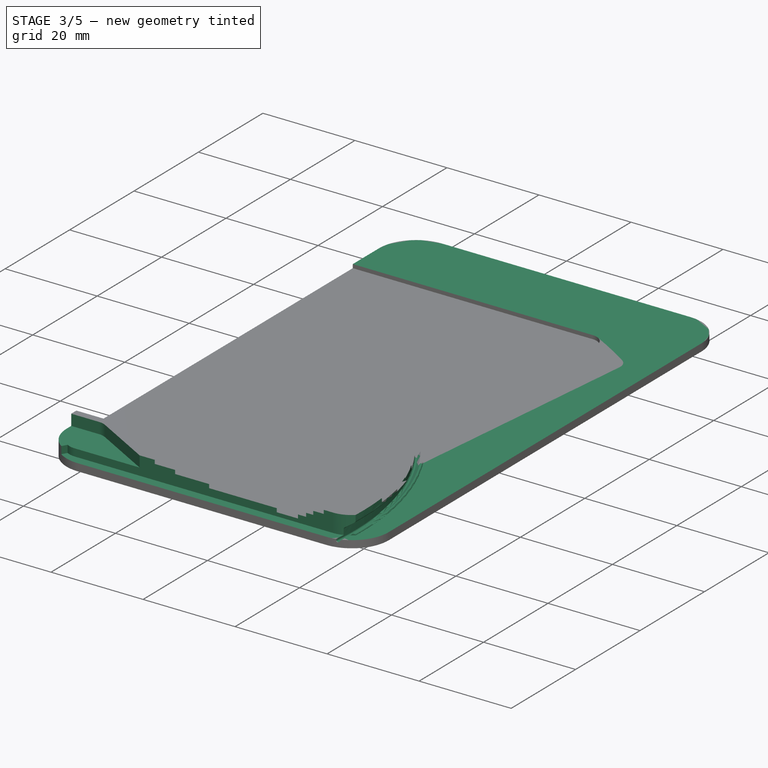
[diagram: stage 3 of 5 — iso view after this stage's code; geometry added in this stage tinted green]
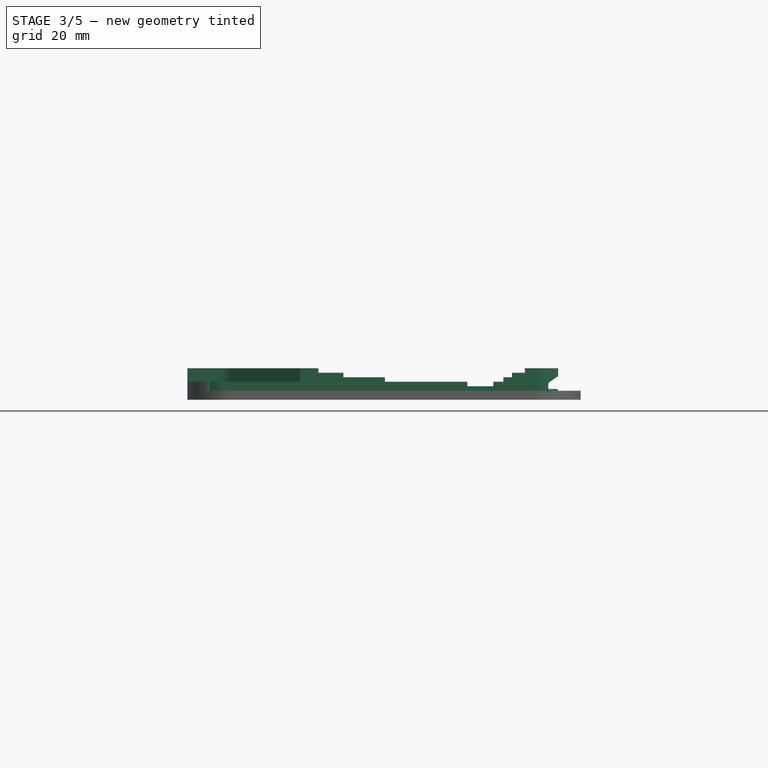
[diagram: stage 3 of 5 — front view after this stage's code; geometry added in this stage tinted green]
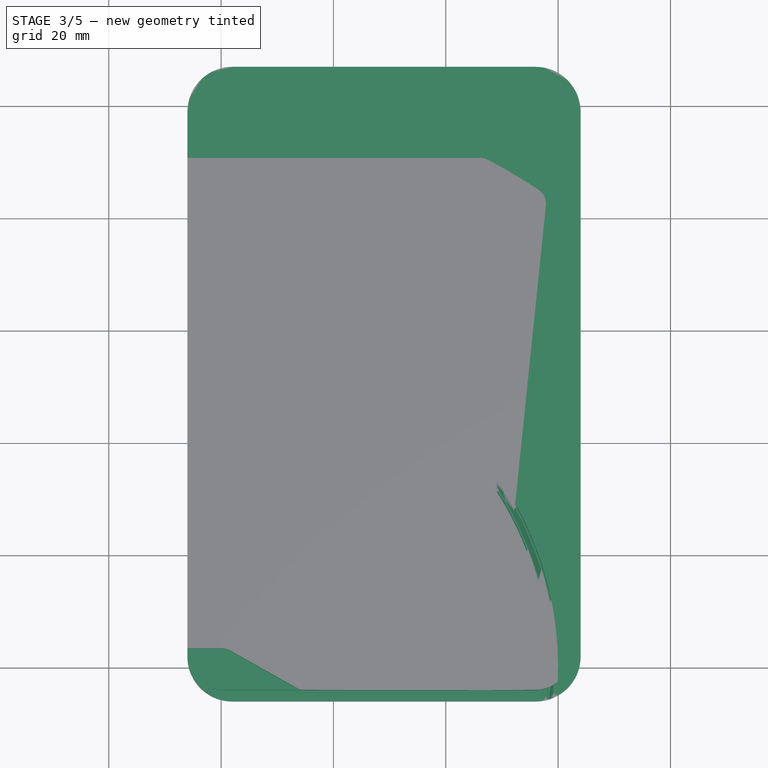
[diagram: stage 3 of 5 — top view after this stage's code; geometry added in this stage tinted green]
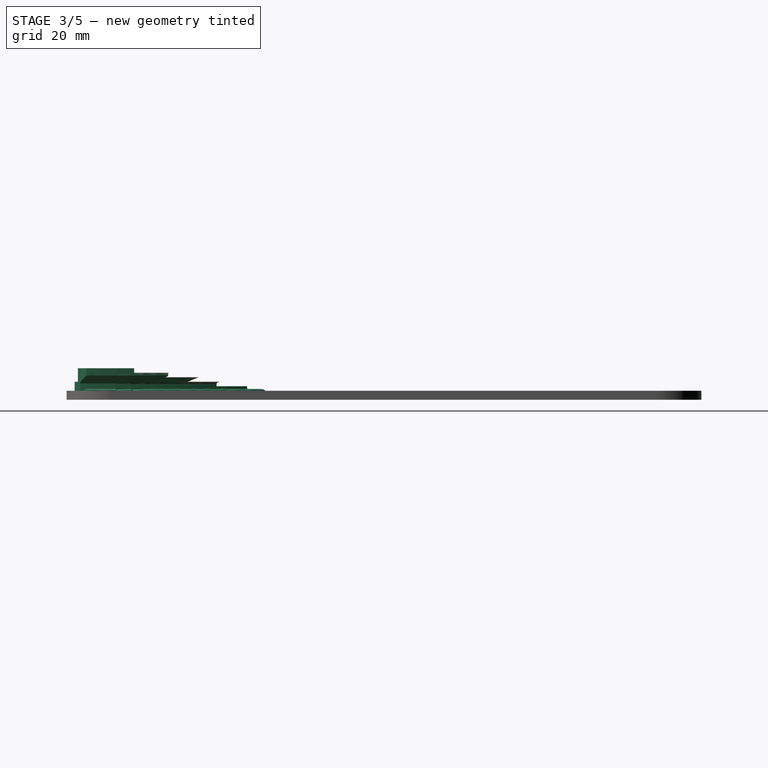
[diagram: stage 3 of 5 — right view after this stage's code; geometry added in this stage tinted green]
FEATURE [Sketcher::SketchObject] Sketch009
  ExternalGeometry = -> [Sketch]
  FullyConstrained = true
  MapMode = 5
  Support = -> [XY_Plane002]
  expr: Constraints[30] = 180 deg - <<vars>>.total_card_angle
  sketch-geometry (13):
    g0: ArcOfCircle CenterX=2 CenterY=99 CenterZ=0 NormalX=0 NormalY=0 NormalZ=1 AngleXU=0 Radius=8 StartAngle=1.5708 EndAngle=3.14159
    g1: ArcOfCircle CenterX=56 CenterY=99 CenterZ=0 NormalX=0 NormalY=0 NormalZ=1 AngleXU=0 Radius=8 StartAngle=0 EndAngle=1.5708
    g2: LineSegment StartX=2 StartY=107 StartZ=0 EndX=56 EndY=107 EndZ=0
    g3: LineSegment StartX=-6 StartY=99 StartZ=0 EndX=-6 EndY=59.6992 EndZ=0
    g4: LineSegment StartX=64 StartY=99 StartZ=0 EndX=64 EndY=2 EndZ=0
    g5: ArcOfCircle CenterX=0 CenterY=0 CenterZ=0 NormalX=0 NormalY=0 NormalZ=1 AngleXU=0 Radius=60 StartAngle=6.24119 EndAngle=7.95415
    g6: ArcOfCircle CenterX=56 CenterY=2 CenterZ=0 NormalX=0 NormalY=0 NormalZ=1 AngleXU=0 Radius=6 StartAngle=4.71239 EndAngle=5.43035
    g7: ArcOfCircle CenterX=56 CenterY=2 CenterZ=0 NormalX=0 NormalY=0 NormalZ=1 AngleXU=0 Radius=8 StartAngle=4.71239 EndAngle=6.28319
    g8: LineSegment StartX=56 StartY=-4 StartZ=0 EndX=0 EndY=-4 EndZ=0
    g9: LineSegment StartX=56 StartY=-6 StartZ=0 EndX=2 EndY=-6 EndZ=0
    g10: ArcOfCircle CenterX=2 CenterY=2 CenterZ=0 NormalX=0 NormalY=0 NormalZ=1 AngleXU=0 Radius=8 StartAngle=4.10483 EndAngle=4.71239
    g11: LineSegment StartX=-1.95945 StartY=-3.4872 StartZ=0 EndX=-2.56694 EndY=-4.56834 EndZ=0
    g12: ArcOfCircle CenterX=0 CenterY=0 CenterZ=0 NormalX=0 NormalY=0 NormalZ=1 AngleXU=0 Radius=4 StartAngle=4.20046 EndAngle=4.71239
  constraints (31):
    c: Coincident(g0,g-3)
    c: Coincident(g0,g-3)
    c: Coincident(g1,g-4)
    c: Coincident(g1,g-4)
    c: Equal(g-3,g0)
    c: Coincident(g2,g0)
    c: Coincident(g2,g1)
    c: Tangent(g3,g0) = -1.5708
    c: Tangent(g4,g1) = 1.5708
    c: Coincident(g5,g-1)
    c: Coincident(g5,g3)
    c: Radius(g5) = 60  'SplitRadius'
    c: Coincident(g7,g-5)
    c: Coincident(g7,g-5)
    c: Equal(g-5,g7)
    c: Coincident(g7,g4)
    c: Coincident(g7,g6)
    c: Horizontal(g8)
    c: Coincident(g9,g7)
    c: Coincident(g9,g-6)
    c: Equal(g-6,g10)
    c: Tangent(g10,g9) = 1.5708
    c: Tangent(g8,g6) = 1.5708
    c: DistanceY(g7,g6) = 2
    c: Coincident(g5,g6)
    c: Coincident(g11,g10)
    c: Coincident(g12,g5)
    c: Tangent(g8,g12) = 1.5708
    c: Coincident(g11,g12)
    c: PointOnObject(g5,g11)
    c: Angle(g-2,g11) = 2.62966
FEATURE [PartDesign::Pocket] Pocket006  label="OuterSupportCutout"
  BaseFeature = -> Pocket005
  Direction = (0,0,-1)
  Length = 6.4
  Length2 = -1.6
  Profile = -> Sketch009
  ReferenceAxis = -> Sketch009 [N_Axis]
  Reversed = true
  Type = 4
  expr: Length = <<vars>>.thickness
  expr: Length2 = -(<<vars>>.module_separator_wall + <<vars>>.cc_thickness)
FEATURE [Sketcher::SketchObject] Sketch010
  ExternalGeometry = -> [Sketch]
  FullyConstrained = true
  MapMode = 5
  Support = -> [XY_Plane002]
  sketch-geometry (7):
    g0: LineSegment StartX=17.6188 StartY=-6 StartZ=0 EndX=1.66553 EndY=2.96412 EndZ=0
    g1: ArcOfCircle CenterX=0 CenterY=0 CenterZ=0 NormalX=0 NormalY=0 NormalZ=1 AngleXU=0 Radius=3.4 StartAngle=1.05887 EndAngle=1.5708
    g2: LineSegment StartX=1.66553 StartY=2.96412 StartZ=0 EndX=2.44931 EndY=4.359 EndZ=0
    g3: LineSegment StartX=0 StartY=3.4 StartZ=0 EndX=-6 EndY=3.4 EndZ=0
    g4: LineSegment StartX=-6 StartY=3.4 StartZ=0 EndX=-6 EndY=2 EndZ=0
    g5: LineSegment StartX=17.6188 StartY=-6 StartZ=0 EndX=2 EndY=-6 EndZ=0
    g6: ArcOfCircle CenterX=2 CenterY=2 CenterZ=0 NormalX=0 NormalY=0 NormalZ=1 AngleXU=0 Radius=8 StartAngle=3.14159 EndAngle=4.71239
  constraints (18):
    c: PointOnObject(g0,g-5)
    c: Coincident(g1,g-4)
    c: Tangent(g1,g0) = -1.5708
    c: Coincident(g2,g0)
    c: PointOnObject(g2,g-3)
    c: Perpendicular(g0,g2)
    c: Distance(g2) = 1.6
    c: Parallel(g0,g-3)
    c: Horizontal(g3)
    c: Coincident(g4,g3)
    c: Coincident(g4,g-6)
    c: Coincident(g5,g0)
    c: Coincident(g5,g-6)
    c: Coincident(g6,g5)
    c: Coincident(g6,g4)
    c: Equal(g6,g-6)
    c: Vertical(g4)
    c: Tangent(g3,g1) = -1.5708
FEATURE [PartDesign::Pocket] Pocket007  label="UpperPivotCutout"
  BaseFeature = -> Pocket006
  Direction = (0,0,-1)
  Length = 6.4
  Length2 = -3.2
  Profile = -> Sketch010
  ReferenceAxis = -> Sketch010 [N_Axis]
  Reversed = true
  Type = 4
  expr: Length = <<vars>>.thickness
  expr: Length2 = -(<<vars>>.thickness / 2)
FEATURE [Sketcher::SketchObject] Sketch011
  FullyConstrained = true
  MapMode = 5
  Placement = pos=(0,0,0) rot=(1,0,0;1.5708rad)
  Support = -> [XZ_Plane002]
  expr: Constraints[19] = <<vars>>.thickness / 2
  expr: Constraints[30] = Sketch009.Constraints.SplitRadius
  sketch-geometry (15):
    g0: LineSegment StartX=59.8721 StartY=4.12945 StartZ=0 EndX=58.3599 EndY=3.07061 EndZ=0
    g1: LineSegment StartX=58.7441 StartY=1.09317 StartZ=0 EndX=59.4879 EndY=1.83694 EndZ=0
    g2: LineSegment StartX=58.232 StartY=2.82487 StartZ=0 EndX=58.232 EndY=1.3053 EndZ=0
    g3: ArcOfCircle CenterX=58.532 CenterY=2.82487 CenterZ=0 NormalX=0 NormalY=0 NormalZ=1 AngleXU=0 Radius=0.3 StartAngle=2.18166 EndAngle=3.14159
    g4: GeomPoint X=58.232 Y=2.98104 Z=0
    g5: ArcOfCircle CenterX=58.532 CenterY=1.3053 CenterZ=0 NormalX=0 NormalY=0 NormalZ=1 AngleXU=0 Radius=0.3 StartAngle=3.14159 EndAngle=5.49779
    g6: GeomPoint X=58.232 Y=0.581037 Z=0
    g7: ArcOfCircle CenterX=59.7 CenterY=1.6248 CenterZ=0 NormalX=0 NormalY=0 NormalZ=1 AngleXU=0 Radius=0.3 StartAngle=0 EndAngle=2.35619
    g8: GeomPoint X=60 Y=2.34907 Z=0
    g9: ArcOfCircle CenterX=59.7 CenterY=4.3752 CenterZ=0 NormalX=0 NormalY=0 NormalZ=1 AngleXU=0 Radius=0.3 StartAngle=5.32325 EndAngle=6.28319
    g10: GeomPoint X=60 Y=4.21903 Z=0
    g11: LineSegment StartX=60 StartY=4.3752 StartZ=0 EndX=60 EndY=1.6248 EndZ=0
    g12: GeomPoint X=60 Y=3 Z=0
    g13: GeomPoint X=58.232 Y=2.06508 Z=0
    g14: LineSegment StartX=58.232 StartY=2.06508 StartZ=0 EndX=60 EndY=3 EndZ=0
  constraints (32):
    c: PointOnObject(g4,g0)
    c: PointOnObject(g4,g2)
    c: Tangent(g0,g3) = -1.5708
    c: Tangent(g2,g3) = -1.5708
    c: PointOnObject(g6,g1)
    c: PointOnObject(g6,g2)
    c: Tangent(g1,g5) = -1.5708
    c: Tangent(g2,g5) = -1.5708
    c: PointOnObject(g8,g1)
    c: Tangent(g1,g7) = 1.5708
    c: PointOnObject(g10,g0)
    c: Tangent(g0,g9) = 1.5708
    c: Equal(g9,g7)
    c: Equal(g5,g3)
    c: Equal(g3,g9)
    c: Tangent(g11,g7) = 1.5708
    c: Tangent(g11,g9) = 1.5708
    c: PointOnObject(g10,g11)
    c: PointOnObject(g8,g11)
    c: Symmetric(g7,g9,g12) = 3.2
    c: DistanceY(g-1,g12) = 3
    c: Radius(g9) = 0.3
    c: Symmetric(g2,g2,g13)
    c: Coincident(g14,g13)
    c: Coincident(g14,g12)
    c: Angle(g0,g1) = 0.174533
    c: Distance(g4,g6) = 2.4
    c: Distance(g14) = 2
    c: Vertical(g11)
    c: Vertical(g2)
    c: DistanceX(g-1,g12) = 60
    c: Angle(g0,g11) = 0.959931
FEATURE [Sketcher::SketchObject] Sketch012
  FullyConstrained = false
  MapMode = 5
  Placement = pos=(0,0,0) rot=(0.57735,0.57735,0.57735;2.0944rad)
  Support = -> [YZ_Plane002]
  expr: Constraints[115] = Sketch015.Constraints.OuterRadius1 - 1.5 mm
  expr: Constraints[16] = <<vars>>.module_separator_wall
  expr: Constraints[2] = <<vars>>.module_separator_wall + <<vars>>.cc_thickness
  expr: Constraints[4] = <<vars>>.thickness
  sketch-geometry (49):
    g0: LineSegment StartX=107 StartY=1.6 StartZ=0 EndX=107 EndY=6.4 EndZ=0
    g1: LineSegment StartX=107 StartY=6.4 StartZ=0 EndX=103 EndY=6.4 EndZ=0
    g2: LineSegment StartX=105.793 StartY=5.6 StartZ=0 EndX=104.207 EndY=5.6 EndZ=0
    g3: LineSegment StartX=104.3 StartY=2.1 StartZ=0 EndX=104.3 EndY=4.09289 EndZ=0
    g4: LineSegment StartX=104.154 StartY=4.44645 StartZ=0 EndX=103.854 EndY=4.74645 EndZ=0
    g5: ArcOfCircle CenterX=104.207 CenterY=5.1 CenterZ=0 NormalX=0 NormalY=0 NormalZ=1 AngleXU=0 Radius=0.5 StartAngle=1.5708 EndAngle=3.92699
    g6: GeomPoint X=103 Y=5.6 Z=0
    g7: ArcOfCircle CenterX=103.8 CenterY=4.09289 CenterZ=0 NormalX=0 NormalY=0 NormalZ=1 AngleXU=0 Radius=0.5 StartAngle=8e-16 EndAngle=0.785398
    g8: GeomPoint X=104.3 Y=4.3 Z=0
    g9: ArcOfCircle CenterX=103.8 CenterY=2.1 CenterZ=0 NormalX=0 NormalY=0 NormalZ=1 AngleXU=0 Radius=0.5 StartAngle=4.71239 EndAngle=6.28319
    g10: GeomPoint X=104.3 Y=1.2 Z=0
    g11: GeomPoint X=107 Y=5.6 Z=0
    g12: ArcOfCircle CenterX=105.793 CenterY=5.1 CenterZ=0 NormalX=0 NormalY=0 NormalZ=1 AngleXU=0 Radius=0.5 StartAngle=5.49779 EndAngle=7.85398
    g13: LineSegment StartX=103.8 StartY=1.6 StartZ=0 EndX=106.2 EndY=1.6 EndZ=0
    g14: ArcOfCircle CenterX=106.2 CenterY=2.1 CenterZ=0 NormalX=0 NormalY=0 NormalZ=1 AngleXU=0 Radius=0.5 StartAngle=3.14159 EndAngle=4.71239
    g15: LineSegment StartX=105.7 StartY=2.1 StartZ=0 EndX=105.7 EndY=4.09289 EndZ=0
    g16: LineSegment StartX=106.146 StartY=4.74645 StartZ=0 EndX=105.846 EndY=4.44645 EndZ=0
    g17: ArcOfCircle CenterX=106.2 CenterY=4.09289 CenterZ=0 NormalX=0 NormalY=0 NormalZ=1 AngleXU=0 Radius=0.5 StartAngle=2.35619 EndAngle=3.14159
    g18: GeomPoint X=105.7 Y=4.3 Z=0
    g19: GeomPoint X=105 Y=1.6 Z=0
    g20: GeomPoint X=105 Y=5.6 Z=0
    g21: LineSegment StartX=105 StartY=5.6 StartZ=0 EndX=105 EndY=1.6 EndZ=0
    g22: GeomPoint X=103.707 Y=5.1 Z=0
    g23: LineSegment StartX=103 StartY=6.4 StartZ=0 EndX=103 EndY=1.6 EndZ=0
    g24: LineSegment StartX=103 StartY=1.6 StartZ=0 EndX=103.8 EndY=1.6 EndZ=0
    g25: LineSegment StartX=106.2 StartY=1.6 StartZ=0 EndX=107 EndY=1.6 EndZ=0
    g26: LineSegment StartX=102.332 StartY=1.6 StartZ=0 EndX=102.332 EndY=6.4 EndZ=0
    g27: LineSegment StartX=102.332 StartY=6.4 StartZ=0 EndX=98.3325 EndY=6.4 EndZ=0
    g28: LineSegment StartX=98.3325 StartY=6.4 StartZ=0 EndX=98.3325 EndY=1.6 EndZ=0
    g29: LineSegment StartX=98.3325 StartY=1.6 StartZ=0 EndX=99.1325 EndY=1.6 EndZ=0
    g30: LineSegment StartX=99.6325 StartY=2.1 StartZ=0 EndX=99.6325 EndY=4.09289 EndZ=0
    g31: LineSegment StartX=99.486 StartY=4.44645 StartZ=0 EndX=99.186 EndY=4.74645 EndZ=0
    g32: LineSegment StartX=99.5396 StartY=5.6 StartZ=0 EndX=101.125 EndY=5.6 EndZ=0
    g33: LineSegment StartX=101.479 StartY=4.74645 StartZ=0 EndX=101.179 EndY=4.44645 EndZ=0
    g34: LineSegment StartX=101.032 StartY=4.09289 StartZ=0 EndX=101.032 EndY=2.1 EndZ=0
    g35: LineSegment StartX=101.532 StartY=1.6 StartZ=0 EndX=102.332 EndY=1.6 EndZ=0
    g36: LineSegment StartX=100.332 StartY=1.6 StartZ=0 EndX=100.332 EndY=5.6 EndZ=0
    g37: ArcOfCircle CenterX=99.5396 CenterY=5.1 CenterZ=0 NormalX=0 NormalY=0 NormalZ=1 AngleXU=0 Radius=0.5 StartAngle=1.5708 EndAngle=3.92699
    g38: GeomPoint X=98.3325 Y=5.6 Z=0
    g39: ArcOfCircle CenterX=101.125 CenterY=5.1 CenterZ=0 NormalX=0 NormalY=0 NormalZ=1 AngleXU=0 Radius=0.5 StartAngle=5.49779 EndAngle=7.85398
    g40: GeomPoint X=102.332 Y=5.6 Z=0
    g41: ArcOfCircle CenterX=101.532 CenterY=4.09289 CenterZ=0 NormalX=0 NormalY=0 NormalZ=1 AngleXU=0 Radius=0.5 StartAngle=2.35619 EndAngle=3.14159
    g42: GeomPoint X=101.032 Y=4.3 Z=0
    g43: ArcOfCircle CenterX=99.1325 CenterY=4.09289 CenterZ=0 NormalX=0 NormalY=0 NormalZ=1 AngleXU=0 Radius=0.5 StartAngle=-9e-16 EndAngle=0.785398
    g44: GeomPoint X=99.6325 Y=4.3 Z=0
    g45: ArcOfCircle CenterX=99.1325 CenterY=2.1 CenterZ=0 NormalX=0 NormalY=0 NormalZ=1 AngleXU=0 Radius=0.5 StartAngle=4.71239 EndAngle=6.28319
    g46: GeomPoint X=99.6325 Y=1.6 Z=0
    g47: ArcOfCircle CenterX=101.532 CenterY=2.1 CenterZ=0 NormalX=0 NormalY=0 NormalZ=1 AngleXU=0 Radius=0.5 StartAngle=3.14159 EndAngle=4.71239
    g48: GeomPoint X=101.032 Y=1.6 Z=0
  constraints (117):
    c: Vertical(g0)
    c: DistanceX(g-1,g0) = 107
    c: DistanceY(g-1,g0) = 1.6
    c: Horizontal(g1)
    c: DistanceY(g-1,g1) = 6.4
    c: Coincident(g1,g0)
    c: Horizontal(g2)
    c: Vertical(g3)
    c: PointOnObject(g6,g2)
    c: PointOnObject(g6,g4)
    c: Tangent(g2,g5) = -1.5708
    c: Tangent(g4,g5) = 1.5708
    c: PointOnObject(g8,g3)
    c: PointOnObject(g8,g4)
    c: Tangent(g3,g7) = -1.5708
    c: Tangent(g4,g7) = -1.5708
    c: DistanceY(g11,g0) = 0.8
    c: Radius(g5) = 0.5
    c: Equal(g7,g5)
    c: DistanceX(g6,g11) = 4
    c: Angle(g4,g2) = 0.785398
    c: PointOnObject(g10,g3)
    c: Tangent(g3,g9) = -1.5708
    c: Equal(g9,g7)
    c: Tangent(g12,g2) = -1.5708
    c: Equal(g12,g5)
    c: Horizontal(g13)
    c: Vertical(g15)
    c: Coincident(g16,g12)
    c: PointOnObject(g18,g15)
    c: PointOnObject(g18,g16)
    c: Tangent(g15,g17) = 1.5708
    c: Tangent(g16,g17) = -1.5708
    c: Equal(g7,g17)
    c: Equal(g9,g14)
    c: DistanceX(g3,g14) = 1.4
    c: Symmetric(g9,g13,g19)
    c: DistanceX(g19,g0) = 2
    c: Symmetric(g2,g2,g20)
    c: Vertical(g20,g19)
    c: Coincident(g21,g20)
    c: Coincident(g21,g19)
    c: Tangent(g16,g12,g12) = 1.5708
    c: Tangent(g14,g13) = -1.5708
    c: Tangent(g15,g14) = 1.5708
    c: PointOnObject(g0,g13)
    c: Tangent(g13,g9) = -1.5708
    c: Equal(g15,g3)
    c: PointOnObject(g22,g5)
    c: Horizontal(g22,g5)
    c: DistanceX(g22,g3) = 0.592893
    c: PointOnObject(g11,g16)
    c: PointOnObject(g11,g2)
    c: Coincident(g23,g1)
    c: Vertical(g23)
    c: Coincident(g24,g23)
    c: Coincident(g24,g9)
    c: Horizontal(g24)
    c: Coincident(g25,g14)
    c: Coincident(g25,g0)
    c: PointOnObject(g6,g23)
    c: Vertical(g26)
    c: Coincident(g27,g26)
    c: Horizontal(g27)
    c: Coincident(g28,g27)
    c: Vertical(g28)
    c: Coincident(g29,g28)
    c: Horizontal(g29)
    c: Vertical(g30)
    c: Horizontal(g32)
    c: Vertical(g34)
    c: Coincident(g35,g26)
    c: Vertical(g36)
    c: Symmetric(g46,g48,g36)
    c: Symmetric(g38,g40,g36)
    c: Horizontal(g35)
    c: PointOnObject(g26,g24)
    c: PointOnObject(g38,g31)
    c: PointOnObject(g38,g32)
    c: Tangent(g31,g37) = 1.5708
    c: Tangent(g32,g37) = 1.5708
    c: PointOnObject(g40,g32)
    c: PointOnObject(g40,g33)
    c: Tangent(g32,g39) = 1.5708
    c: Tangent(g33,g39) = 1.5708
    c: PointOnObject(g42,g33)
    c: PointOnObject(g42,g34)
    c: Tangent(g33,g41) = -1.5708
    c: Tangent(g34,g41) = -1.5708
    c: PointOnObject(g44,g30)
    c: PointOnObject(g44,g31)
    c: Tangent(g30,g43) = -1.5708
    c: Tangent(g31,g43) = -1.5708
    c: PointOnObject(g48,g29)
    c: PointOnObject(g46,g29)
    c: PointOnObject(g46,g30)
    c: Tangent(g29,g45) = -1.5708
    c: Tangent(g30,g45) = -1.5708
    c: PointOnObject(g48,g34)
    c: PointOnObject(g48,g35)
    c: Tangent(g34,g47) = -1.5708
    c: Tangent(g35,g47) = -1.5708
    c: Equal(g47,g9)
    c: Equal(g47,g45)
    c: Equal(g43,g41)
    c: Equal(g39,g37)
    c: Equal(g39,g41)
    c: Equal(g41,g47)
    c: Parallel(g33,g16)
    c: Parallel(g31,g4)
    c: Equal(g32,g2)
    c: Equal(g36,g21)
    c: Equal(g33,g16)
    c: Equal(g35,g29)
    c: PointOnObject(g26,g1)
    c: DistanceX(g-1,g36) = 100.332
    c: PointOnObject(g40,g26)
FEATURE [Sketcher::SketchObject] Sketch013
  ExternalGeometry = -> [Sketch]
  FullyConstrained = true
  MapMode = 5
  Support = -> [XY_Plane002]
  sketch-geometry (13):
    g0: LineSegment StartX=-6 StartY=-3.33855 StartZ=0 EndX=-6 EndY=92.3 EndZ=0
    g1: LineSegment StartX=-6 StartY=92.3 StartZ=0 EndX=-4.5 EndY=90.8 EndZ=0
    g2: LineSegment StartX=3.5 StartY=5 StartZ=0 EndX=3.5 EndY=1.39642 EndZ=0
    g3: ArcOfCircle CenterX=0 CenterY=0 CenterZ=0 NormalX=0 NormalY=0 NormalZ=1 AngleXU=0 Radius=3 StartAngle=0.423236 EndAngle=2.53073
    g4: LineSegment StartX=-2.45746 StartY=1.72073 StartZ=0 EndX=-6 EndY=-3.33855 EndZ=0
    g5: LineSegment StartX=0 StartY=3 StartZ=0 EndX=0 EndY=5 EndZ=0
    g6: LineSegment StartX=3.60541 StartY=5.78586 StartZ=0 EndX=-4.20541 EndY=7.91953 EndZ=0
    g7: LineSegment StartX=-4.5 StartY=8.30539 StartZ=0 EndX=-4.5 EndY=90.8 EndZ=0
    g8: ArcOfCircle CenterX=3.5 CenterY=5.4 CenterZ=0 NormalX=0 NormalY=0 NormalZ=1 AngleXU=0 Radius=0.4 StartAngle=4.71239 EndAngle=7.58732
    g9: GeomPoint X=3.5 Y=5.81466 Z=0
    g10: ArcOfCircle CenterX=3.1 CenterY=1.39642 CenterZ=0 NormalX=0 NormalY=0 NormalZ=1 AngleXU=0 Radius=0.4 StartAngle=3.56483 EndAngle=6.28319
    g11: ArcOfCircle CenterX=-4.1 CenterY=8.30539 CenterZ=0 NormalX=0 NormalY=0 NormalZ=1 AngleXU=0 Radius=0.4 StartAngle=3.14159 EndAngle=4.44573
    g12: GeomPoint X=-4.5 Y=8 Z=0
  constraints (37):
    c: Coincident(g0,g1)
    c: Vertical(g0)
    c: Vertical(g2)
    c: PointOnObject(g0,g-3)
    c: Coincident(g3,g-1)
    c: Coincident(g4,g0)
    c: Tangent(g4,g3) = -1.5708
    c: Angle(g-1,g4) = 0.959931
    c: PointOnObject(g5,g3)
    c: PointOnObject(g5,g-6)
    c: Vertical(g5)
    c: PointOnObject(g5,g-2)
    c: DistanceY(g5,g5) = 2
    c: Vertical(g7)
    c: DistanceX(g-7,g12) = 0.5
    c: Horizontal(g-7,g12)
    c: PointOnObject(g9,g2)
    c: PointOnObject(g9,g6)
    c: Tangent(g6,g8) = -1.5708
    c: DistanceX(g5,g2) = 3.5
    c: Tangent(g2,g10) = 1.5708
    c: Tangent(g10,g3) = 1.5708
    c: Radius(g10) = 0.4
    c: Equal(g8,g10)
    c: PointOnObject(g12,g6)
    c: PointOnObject(g12,g7)
    c: Tangent(g6,g11) = 1.5708
    c: Tangent(g7,g11) = 1.5708
    c: Equal(g11,g8)
    c: Coincident(g1,g7)
    c: PointOnObject(g1,g-5)
    c: Angle(g0,g1) = 0.785398
    c: Coincident(g8,g2)
    c: Vertical(g2,g8)
    c: Tangent(g-6,g8)
    c: DistanceX(g1,g1) = 1.5
    c: DistanceY(g1,g1) = 1.5
FEATURE [Sketcher::SketchObject] Sketch014
  ExternalGeometry = -> [Sketch,Sketch013]
  FullyConstrained = false
  MapMode = 5
  Support = -> [XY_Plane002]
  sketch-geometry (25):
    g0: LineSegment StartX=-2.36478 StartY=5.61594 StartZ=0 EndX=-5.16097 EndY=8.41213 EndZ=0
    g1: LineSegment StartX=-5.3731 StartY=8.5 StartZ=0 EndX=-5.5 EndY=8.5 EndZ=0
    g2: ArcOfCircle CenterX=3.1 CenterY=1.39642 CenterZ=0 NormalX=0 NormalY=0 NormalZ=1 AngleXU=0 Radius=0.4 StartAngle=3e-16 EndAngle=0.423236
    g3: LineSegment StartX=-2.92947 StartY=5 StartZ=0 EndX=-5.7 EndY=5 EndZ=0
    g4: ArcOfCircle CenterX=0 CenterY=0 CenterZ=0 NormalX=0 NormalY=0 NormalZ=1 AngleXU=0 Radius=3.8 StartAngle=0.423236 EndAngle=1.5708
    g5: ArcOfCircle CenterX=0 CenterY=0 CenterZ=0 NormalX=0 NormalY=0 NormalZ=1 AngleXU=0 Radius=5 StartAngle=0.959323 EndAngle=1.5708
    g6: LineSegment StartX=3.5 StartY=1.39642 StartZ=0 EndX=3.5 EndY=4.42154 EndZ=0
    g7: LineSegment StartX=7e-16 StartY=5 StartZ=0 EndX=7e-16 EndY=3.8 EndZ=0
    g8: LineSegment StartX=-4.16337 StartY=4.85278 StartZ=0 EndX=-2.53069 EndY=5.1074 EndZ=0
    g9: ArcOfCircle CenterX=-2.57692 CenterY=5.40381 CenterZ=0 NormalX=0 NormalY=0 NormalZ=1 AngleXU=0 Radius=0.3 StartAngle=4.86709 EndAngle=7.06858
    g10: GeomPoint X=-1.94723 Y=5.19839 Z=0
    g11: LineSegment StartX=-2.44779 StartY=5.13303 StartZ=0 EndX=-2.27561 EndY=4.77198 EndZ=0
    g12: ArcOfCircle CenterX=0 CenterY=-6.46903 CenterZ=0 NormalX=0 NormalY=0 NormalZ=1 AngleXU=0 Radius=11.469 StartAngle=1.5708 EndAngle=1.92818
    g13: ArcOfCircle CenterX=0 CenterY=-6.46903 CenterZ=0 NormalX=0 NormalY=0 NormalZ=1 AngleXU=0 Radius=10.269 StartAngle=1.5708 EndAngle=2.1181
    g14: ArcOfCircle CenterX=-5.5 CenterY=2.55618 CenterZ=0 NormalX=0 NormalY=0 NormalZ=1 AngleXU=0 Radius=0.3 StartAngle=3.00008 EndAngle=5.25969
    g15: ArcOfCircle CenterX=-4.11714 CenterY=4.55636 CenterZ=0 NormalX=0 NormalY=0 NormalZ=1 AngleXU=0 Radius=0.3 StartAngle=1.7255 EndAngle=5.06978
    g16: LineSegment StartX=-5.61714 StartY=4.55636 StartZ=0 EndX=-4.41714 EndY=4.55636 EndZ=0
    g17: ArcOfCircle CenterX=-5.5 CenterY=8.2 CenterZ=0 NormalX=0 NormalY=0 NormalZ=1 AngleXU=0 Radius=0.3 StartAngle=1.5708 EndAngle=3.2831
    g18: GeomPoint X=-5.84884 Y=8.5 Z=0
    g19: ArcOfCircle CenterX=-5.3731 CenterY=8.2 CenterZ=0 NormalX=0 NormalY=0 NormalZ=1 AngleXU=0 Radius=0.3 StartAngle=0.785398 EndAngle=1.5708
    g20: GeomPoint X=-5.24884 Y=8.5 Z=0
    g21: ArcOfCircle CenterX=-25.3079 CenterY=5.37809 CenterZ=0 NormalX=0 NormalY=0 NormalZ=1 AngleXU=0 Radius=19.7079 StartAngle=6.14167 EndAngle=6.4247
    g22: LineSegment StartX=-5.6 StartY=5.37809 StartZ=0 EndX=-5.8 EndY=5.37809 EndZ=0
    g23: LineSegment StartX=-5.8 StartY=8.2 StartZ=0 EndX=-5.8 EndY=2.55618 EndZ=0
    g24: ArcOfCircle CenterX=3.1 CenterY=4.42154 CenterZ=0 NormalX=0 NormalY=0 NormalZ=1 AngleXU=0 Radius=0.4 StartAngle=4.10092 EndAngle=6.28319
  constraints (66):
    c: Horizontal(g1)
    c: Tangent(g2,g-6) = 1.5708
    c: Equal(g-7,g2)
    c: DistanceX(g18,g20) = 0.6
    c: Horizontal(g3)
    c: Coincident(g4,g7) = 1.5708
    c: Tangent(g4,g2) = -1.5708
    c: Coincident(g5,g-5)
    c: PointOnObject(g5,g-5)
    c: Coincident(g6,g2)
    c: DistanceY(g-3,g20) = 3.5
    c: Coincident(g4,g5)
    c: Coincident(g7,g5)
    c: PointOnObject(g4,g7)
    c: PointOnObject(g10,g0)
    c: PointOnObject(g10,g8)
    c: Tangent(g0,g9) = -1.5708
    c: Tangent(g8,g9) = -1.5708
    c: Angle(g0,g3) = 0.785398
    c: PointOnObject(g11,g9)
    c: PointOnObject(g9,g11)
    c: PointOnObject(g4,g11)
    c: Distance(g11) = 0.4
    c: Vertical(g7)
    c: Tangent(g12,g5) = -1.5708
    c: PointOnObject(g11,g12)
    c: Tangent(g14,g13) = 1.5708
    c: Equal(g14,g9)
    c: Radius(g9) = 0.3
    c: Coincident(g13,g12)
    c: Coincident(g13,g4)
    c: Tangent(g15,g8) = 1.5708
    c: Tangent(g15,g12) = 1.5708
    c: Equal(g9,g15)
    c: PointOnObject(g16,g15)
    c: Horizontal(g16)
    c: PointOnObject(g15,g16)
    c: DistanceX(g16,g16) = 1.2
    c: PointOnObject(g18,g1)
    c: Tangent(g1,g17) = -1.5708
    c: PointOnObject(g20,g0)
    c: PointOnObject(g20,g1)
    c: Tangent(g0,g19) = -1.5708
    c: Tangent(g1,g19) = -1.5708
    c: Equal(g9,g19)
    c: Equal(g17,g19)
    c: Tangent(g21,g17) = 1.5708
    c: Tangent(g21,g14) = 1.5708
    c: PointOnObject(g22,g21)
    c: Horizontal(g22)
    c: PointOnObject(g21,g22)
    c: PointOnObject(g23,g17)
    c: Vertical(g23)
    c: Tangent(g23,g17)
    c: Tangent(g23,g14) = -1.5708
    c: DistanceX(g22,g22) = 0.2
    c: PointOnObject(g22,g23)
    c: PointOnObject(g18,g21)
    c: DistanceX(g-4,g23) = 0.2
    c: PointOnObject(g16,g21)
    c: DistanceY(g7,g7) = 1.2
    c: DistanceY(g13,g4) = 1.5
    c: Tangent(g5,g24) = 1.5708
    c: Equal(g24,g2)
    c: PointOnObject(g6,g-6)
    c: Tangent(g6,g24) = -1.5708
FEATURE [Sketcher::SketchObject] Sketch015
  ExternalGeometry = -> [Sketch]
  FullyConstrained = true
  MapMode = 5
  Support = -> [XY_Plane002]
  sketch-geometry (13):
    g0: ArcOfCircle CenterX=0 CenterY=0 CenterZ=0 NormalX=0 NormalY=0 NormalZ=1 AngleXU=0 Radius=101.832 StartAngle=1.1264 EndAngle=1.6252
    g1: ArcOfCircle CenterX=43.5207 CenterY=91.4 CenterZ=0 NormalX=0 NormalY=0 NormalZ=1 AngleXU=0 Radius=0.6 StartAngle=4.71239 EndAngle=7.40959
    g2: ArcOfCircle CenterX=39.1517 CenterY=91.4 CenterZ=0 NormalX=0 NormalY=0 NormalZ=1 AngleXU=0 Radius=0.6 StartAngle=4.30768 EndAngle=4.71239
    g3: LineSegment StartX=39.1517 StartY=90.8 StartZ=0 EndX=43.5207 EndY=90.8 EndZ=0
    g4: LineSegment StartX=40.0967 StartY=93.6061 StartZ=0 EndX=38.9154 EndY=90.8485 EndZ=0
    g5: ArcOfCircle CenterX=0 CenterY=0 CenterZ=0 NormalX=0 NormalY=0 NormalZ=1 AngleXU=0 Radius=98.8325 StartAngle=1.16609 EndAngle=1.63147
    g6: ArcOfCircle CenterX=2 CenterY=99 CenterZ=0 NormalX=0 NormalY=0 NormalZ=1 AngleXU=0 Radius=8 StartAngle=2.79975 EndAngle=3.18528
    g7: ArcOfCircle CenterX=0 CenterY=0 CenterZ=0 NormalX=0 NormalY=0 NormalZ=1 AngleXU=0 Radius=106.755 StartAngle=0.951122 EndAngle=1.06203
    g8: ArcOfCircle CenterX=0 CenterY=0 CenterZ=0 NormalX=0 NormalY=0 NormalZ=1 AngleXU=0 Radius=103.255 StartAngle=0.926724 EndAngle=1.04303
    g9: LineSegment StartX=52 StartY=93.234 StartZ=0 EndX=52 EndY=89.2051 EndZ=0
    g10: LineSegment StartX=62 StartY=82.5684 StartZ=0 EndX=62 EndY=86.9056 EndZ=0
    g11: ArcOfCircle CenterX=0 CenterY=0 CenterZ=0 NormalX=0 NormalY=0 NormalZ=1 AngleXU=0 Radius=105 StartAngle=0.939148 EndAngle=1.05269
    g12: LineSegment StartX=62 StartY=86.9056 StartZ=0 EndX=59.9673 EndY=84.0563 EndZ=0
  constraints (41):
    c: Coincident(g0,g-1)
    c: Horizontal(g3)
    c: Tangent(g3,g1) = -1.5708
    c: Tangent(g1,g0) = -1.5708
    c: Tangent(g3,g2) = -1.5708
    c: PointOnObject(g-3,g3)
    c: PointOnObject(g-3,g0)
    c: Equal(g1,g2)
    c: DistanceX(g3,g3) = 4.36901
    c: PointOnObject(g4,g0)
    c: PointOnObject(g4,g2)
    c: PointOnObject(g0,g4)
    c: PointOnObject(g2,g4)
    c: Distance(g4) = 3
    c: Radius(g0) = 101.832  'OuterRadius1'
    c: Coincident(g5,g0)
    c: Tangent(g5,g2) = 1.5708
    c: Radius(g1) = 0.6
    c: PointOnObject(g6,g-4)
    c: PointOnObject(g6,g-4)
    c: Equal(g6,g-4)
    c: Coincident(g5,g6)
    c: Coincident(g0,g6)
    c: Coincident(g7,g0)
    c: Coincident(g8,g0)
    c: Coincident(g9,g7)
    c: Coincident(g9,g8)
    c: Coincident(g10,g8)
    c: Coincident(g10,g7)
    c: Vertical(g10)
    c: Vertical(g9)
    c: DistanceX(g7,g-5) = 2
    c: DistanceX(g7,g7) = 10
    c: Coincident(g11,g0)
    c: PointOnObject(g11,g10)
    c: Symmetric(g7,g8,g11)
    c: Radius(g11) = 105
    c: Coincident(g12,g7)
    c: PointOnObject(g12,g8)
    c: PointOnObject(g0,g12)
    c: Distance(g12) = 3.5
FEATURE [Sketcher::SketchObject] Sketch016
  FullyConstrained = true
  MapMode = 5
  Placement = pos=(0,0,0) rot=(0.57735,0.57735,0.57735;2.0944rad)
  Support = -> [YZ_Plane002]
  expr: Constraints[14] = <<vars>>.thickness / 2
  sketch-geometry (7):
    g0: LineSegment StartX=0 StartY=0 StartZ=0 EndX=2.4 EndY=0 EndZ=0
    g1: LineSegment StartX=2.4 StartY=0 StartZ=0 EndX=2.4 EndY=2 EndZ=0
    g2: LineSegment StartX=2.2 StartY=3.2 StartZ=0 EndX=0 EndY=3.2 EndZ=0
    g3: LineSegment StartX=0 StartY=3.2 StartZ=0 EndX=0 EndY=0 EndZ=0
    g4: LineSegment StartX=2 StartY=3 StartZ=0 EndX=2 EndY=2 EndZ=0
    g5: LineSegment StartX=2 StartY=2 StartZ=0 EndX=2.4 EndY=2 EndZ=0
    g6: ArcOfCircle CenterX=2.2 CenterY=3 CenterZ=0 NormalX=0 NormalY=0 NormalZ=1 AngleXU=0 Radius=0.2 StartAngle=1.5708 EndAngle=3.14159
  constraints (19):
    c: Coincident(g0,g1)
    c: Coincident(g2,g3)
    c: Coincident(g3,g0)
    c: Horizontal(g0)
    c: Horizontal(g2)
    c: Vertical(g1)
    c: Vertical(g3)
    c: Coincident(g0,g-1)
    c: Coincident(g4,g5)
    c: Horizontal(g5)
    c: Vertical(g4)
    c: Tangent(g4,g6) = -1.5708
    c: Radius(g6) = 0.2
    c: DistanceY(g1,g1) = 2
    c: DistanceY(g3,g3) = 3.2
    c: DistanceX(g0,g0) = 2.4
    c: DistanceX(g0,g4) = 2
    c: Coincident(g5,g1)
    c: Tangent(g2,g6) = -1.5708
FEATURE [Sketcher::SketchObject] Sketch017
  ExternalGeometry = -> [Sketch]
  FullyConstrained = true
  MapMode = 5
  Placement = pos=(0,0,0) rot=(0.57735,0.57735,0.57735;2.0944rad)
  Support = -> [YZ_Plane002]
  expr: Constraints[13] = <<vars>>.module_separator_wall + <<vars>>.cc_thickness
  sketch-geometry (6):
    g0: LineSegment StartX=-4.8 StartY=-2.2e-15 StartZ=0 EndX=-4.8 EndY=0.4 EndZ=0
    g1: LineSegment StartX=-4.8 StartY=0.4 StartZ=0 EndX=-4.2 EndY=1 EndZ=0
    g2: LineSegment StartX=-4.2 StartY=1 StartZ=0 EndX=-4.2 EndY=1.6 EndZ=0
    g3: LineSegment StartX=-4.2 StartY=1.6 StartZ=0 EndX=-6 EndY=3.4 EndZ=0
    g4: LineSegment StartX=-6 StartY=3.4 StartZ=0 EndX=-6 EndY=-2.2e-15 EndZ=0
    g5: LineSegment StartX=-6 StartY=-2.2e-15 StartZ=0 EndX=-4.8 EndY=-2.2e-15 EndZ=0
  constraints (17):
    c: Vertical(g0)
    c: Coincident(g1,g0)
    c: Coincident(g2,g1)
    c: Vertical(g2)
    c: Coincident(g3,g2)
    c: Coincident(g4,g3)
    c: Vertical(g4)
    c: Coincident(g5,g4)
    c: Coincident(g5,g0)
    c: Horizontal(g5)
    c: DistanceX(g1,g1) = 0.6
    c: Coincident(g4,g-3)
    c: DistanceX(g5,g5) = 1.2
    c: DistanceY(g0,g2) = 1.6
    c: Angle(g3,g2) = 2.35619
    c: DistanceY(g0,g1) = 1
    c: Angle(g2,g1) = 2.35619
FEATURE [Sketcher::SketchObject] Sketch018
  ExternalGeometry = -> [Sketch]
  FullyConstrained = true
  MapMode = 5
  Support = -> [XY_Plane002]
  sketch-geometry (10):
    g0: LineSegment StartX=29 StartY=107 StartZ=0 EndX=29 EndY=-6 EndZ=0
    g1: LineSegment StartX=2 StartY=50.5 StartZ=0 EndX=56 EndY=50.5 EndZ=0
    g2: LineSegment StartX=26 StartY=-2.8 StartZ=0 EndX=28 EndY=-4.8 EndZ=0
    g3: LineSegment StartX=28 StartY=-4.8 StartZ=0 EndX=30 EndY=-4.8 EndZ=0
    g4: LineSegment StartX=30 StartY=-4.8 StartZ=0 EndX=32 EndY=-2.8 EndZ=0
    g5: LineSegment StartX=32 StartY=103.8 StartZ=0 EndX=30 EndY=105.8 EndZ=0
    g6: LineSegment StartX=30 StartY=105.8 StartZ=0 EndX=28 EndY=105.8 EndZ=0
    g7: LineSegment StartX=28 StartY=105.8 StartZ=0 EndX=26 EndY=103.8 EndZ=0
    g8: LineSegment StartX=32 StartY=103.8 StartZ=0 EndX=26 EndY=103.8 EndZ=0
    g9: LineSegment StartX=26 StartY=-2.8 StartZ=0 EndX=32 EndY=-2.8 EndZ=0
  constraints (22):
    c: Symmetric(g-4,g-3,g1)
    c: Symmetric(g-4,g-3,g1)
    c: Symmetric(g-3,g-3,g0)
    c: Symmetric(g-4,g-4,g0)
    c: Coincident(g3,g2)
    c: Coincident(g4,g3)
    c: Coincident(g6,g5)
    c: Coincident(g7,g6)
    c: Symmetric(g2,g3,g0)
    c: Symmetric(g6,g5,g0)
    c: Symmetric(g7,g2,g1)
    c: Symmetric(g5,g4,g1)
    c: Coincident(g8,g5)
    c: Coincident(g8,g7)
    c: Coincident(g9,g2)
    c: Coincident(g9,g4)
    c: Symmetric(g5,g7,g0)
    c: Angle(g6,g5) = 2.35619
    c: DistanceY(g5,g5) = 2
    c: Symmetric(g2,g6,g1)
    c: DistanceX(g6,g6) = 2
    c: DistanceY(g5,g0) = 1.2
FEATURE [Sketcher::SketchObject] Sketch019
  ExternalGeometry = -> [Sketch]
  FullyConstrained = true
  MapMode = 5
  Support = -> [XY_Plane002]
  sketch-geometry (5):
    g0: ArcOfCircle CenterX=56 CenterY=99 CenterZ=0 NormalX=0 NormalY=0 NormalZ=1 AngleXU=0 Radius=8 StartAngle=1.1e-15 EndAngle=1.5708
    g1: ArcOfCircle CenterX=56 CenterY=2 CenterZ=0 NormalX=0 NormalY=0 NormalZ=1 AngleXU=0 Radius=8 StartAngle=4.71239 EndAngle=6.28319
    g2: LineSegment StartX=64 StartY=99 StartZ=0 EndX=64 EndY=2 EndZ=0
    g3: LineSegment StartX=56 StartY=-6 StartZ=0 EndX=-6 EndY=-6 EndZ=0
    g4: LineSegment StartX=-6 StartY=107 StartZ=0 EndX=56 EndY=107 EndZ=0
  constraints (12):
    c: Coincident(g0,g-4)
    c: Coincident(g0,g-4)
    c: Equal(g0,g-4)
    c: Coincident(g1,g-3)
    c: Coincident(g1,g-3)
    c: Equal(g-3,g1)
    c: Coincident(g2,g0)
    c: Coincident(g2,g1)
    c: Tangent(g4,g0) = 1.5708
    c: Tangent(g3,g1) = 1.5708
    c: PointOnObject(g3,g-5)
    c: Vertical(g4,g3)
FEATURE [PartDesign::Groove] Groove  label="SideSlide"
  Angle = 360
  Axis = (0,-2e-16,1)
  Base = (0,0,0)
  BaseFeature = -> Pocket007
  Profile = -> Sketch011
  ReferenceAxis = -> Sketch011 [V_Axis]
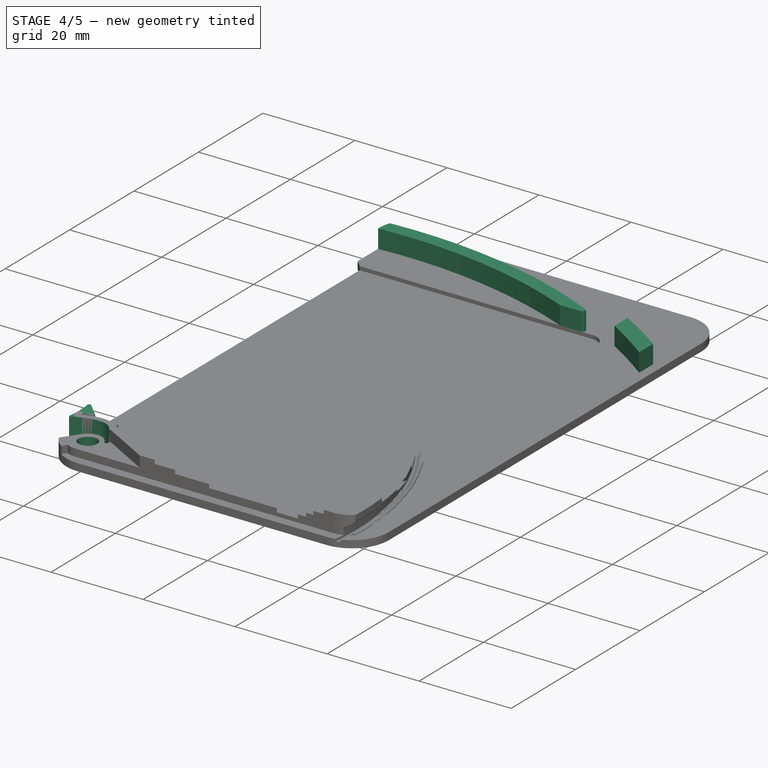
[diagram: stage 4 of 5 — iso view after this stage's code; geometry added in this stage tinted green]
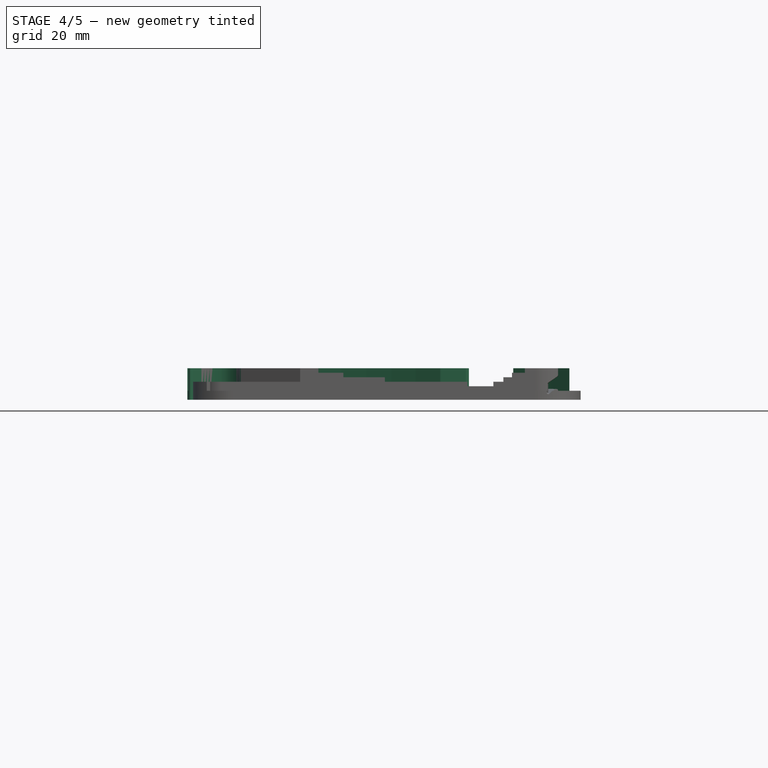
[diagram: stage 4 of 5 — front view after this stage's code; geometry added in this stage tinted green]
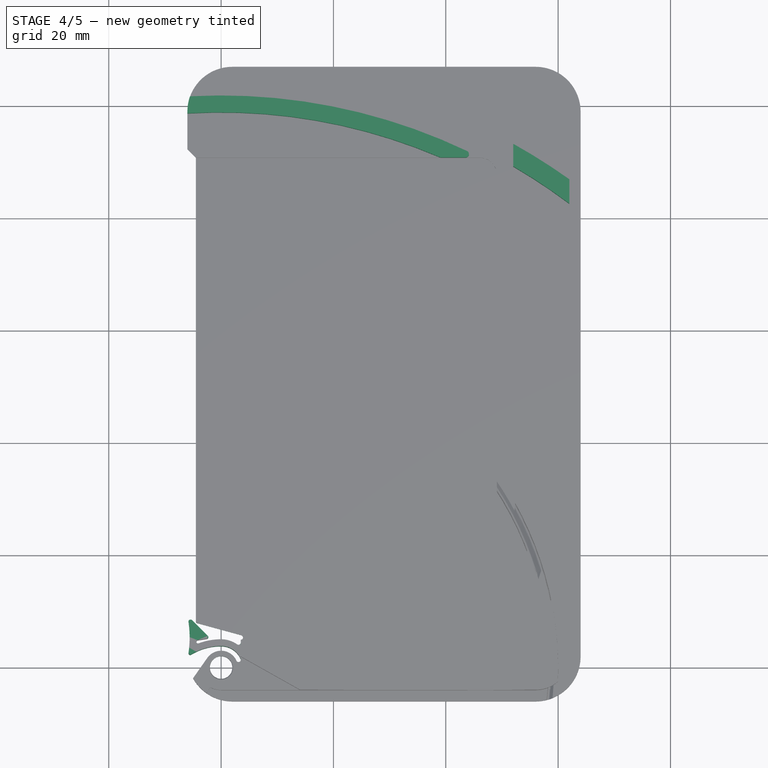
[diagram: stage 4 of 5 — top view after this stage's code; geometry added in this stage tinted green]
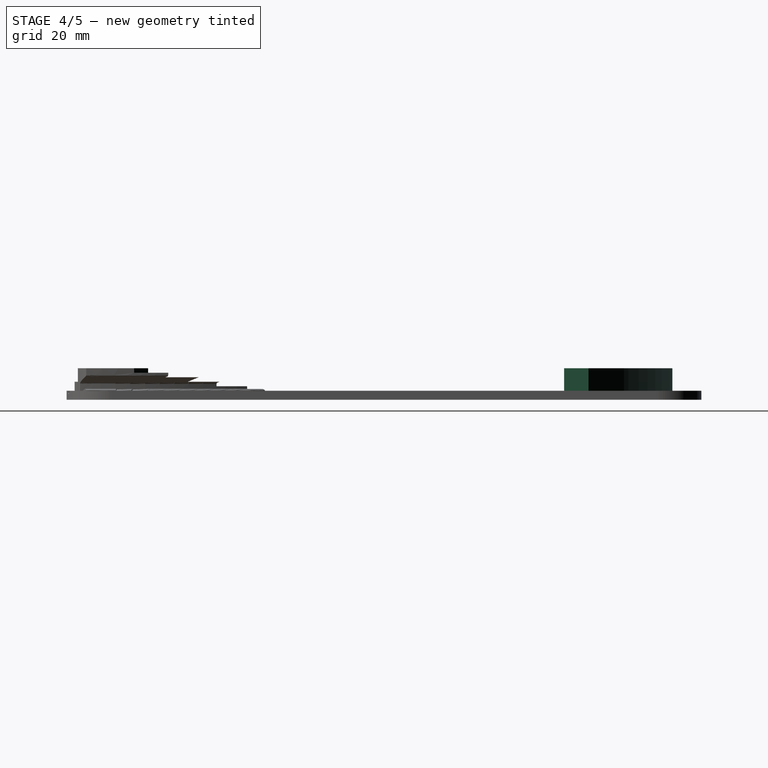
[diagram: stage 4 of 5 — right view after this stage's code; geometry added in this stage tinted green]
FEATURE [PartDesign::Pocket] Pocket008  label="HookPocket"
  BaseFeature = -> Groove
  Direction = (0,0,-1)
  Length = 5
  Length2 = 5
  Profile = -> Sketch013
  ReferenceAxis = -> Sketch013 [N_Axis]
  Reversed = true
  Type = 1
FEATURE [PartDesign::Pad] Pad001  label="Hook"
  BaseFeature = -> Pocket008
  Direction = (0,0,1)
  Length = 5.6
  Length2 = 10
  Profile = -> Sketch014
  ReferenceAxis = -> Sketch014 [N_Axis]
  Type = 0
  expr: Length = <<vars>>.thickness - <<vars>>.module_separator_wall
FEATURE [PartDesign::Pad] Pad002
  BaseFeature = -> Pad001
  Direction = (0,0,1)
  Length = 5.6
  Length2 = 10
  Profile = -> Sketch015
  ReferenceAxis = -> Sketch015 [N_Axis]
  Type = 0
  expr: Length = <<vars>>.thickness - <<vars>>.module_separator_wall
FEATURE [PartDesign::Groove] Groove001
  Angle = 360
  Axis = (-2e-16,3e-16,1)
  Base = (0,0,0)
  BaseFeature = -> Pad002
  Profile = -> Sketch016
  ReferenceAxis = -> Sketch016 [V_Axis]
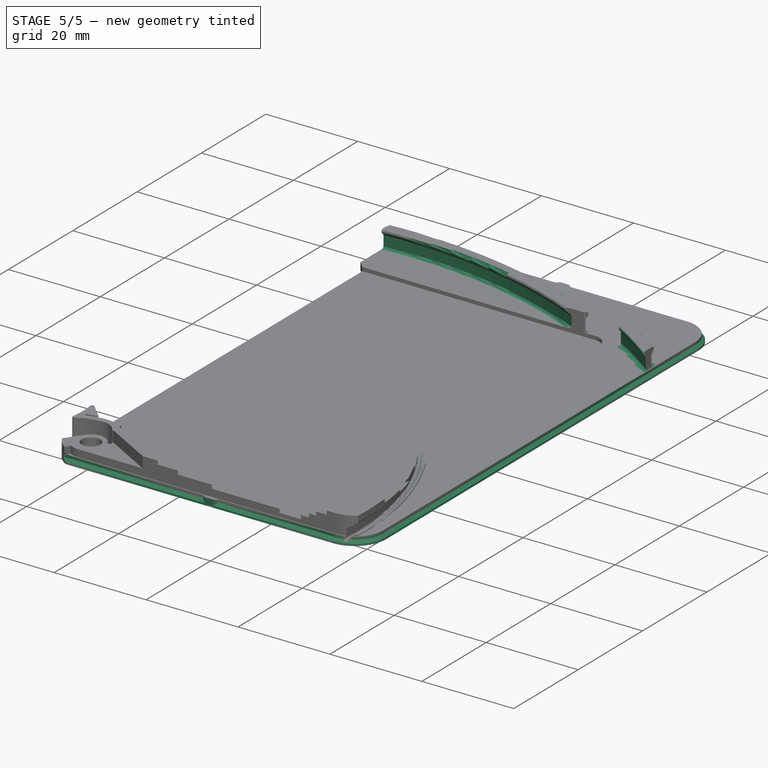
[diagram: stage 5 of 5 — iso view after this stage's code; geometry added in this stage tinted green]
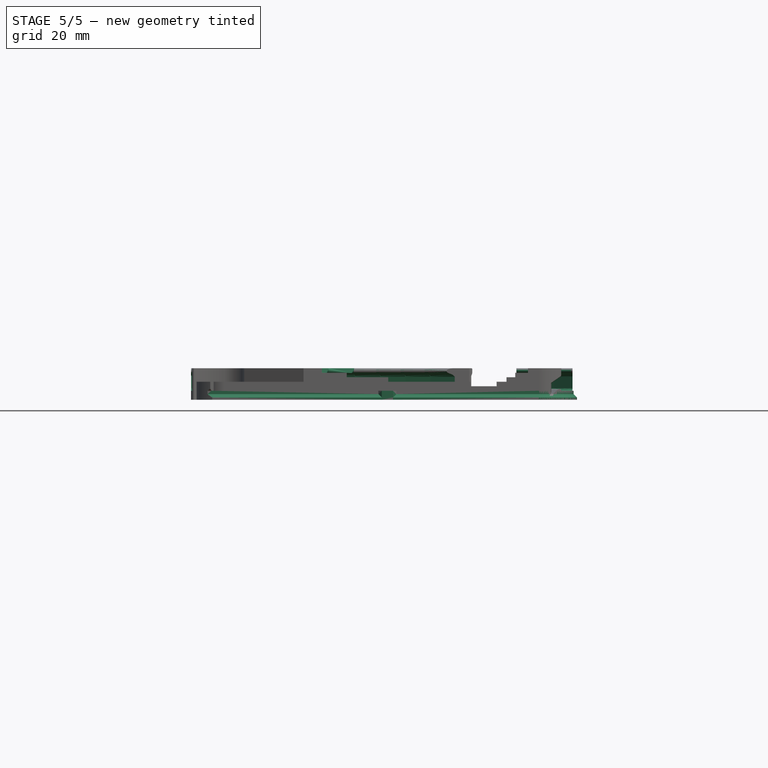
[diagram: stage 5 of 5 — front view after this stage's code; geometry added in this stage tinted green]
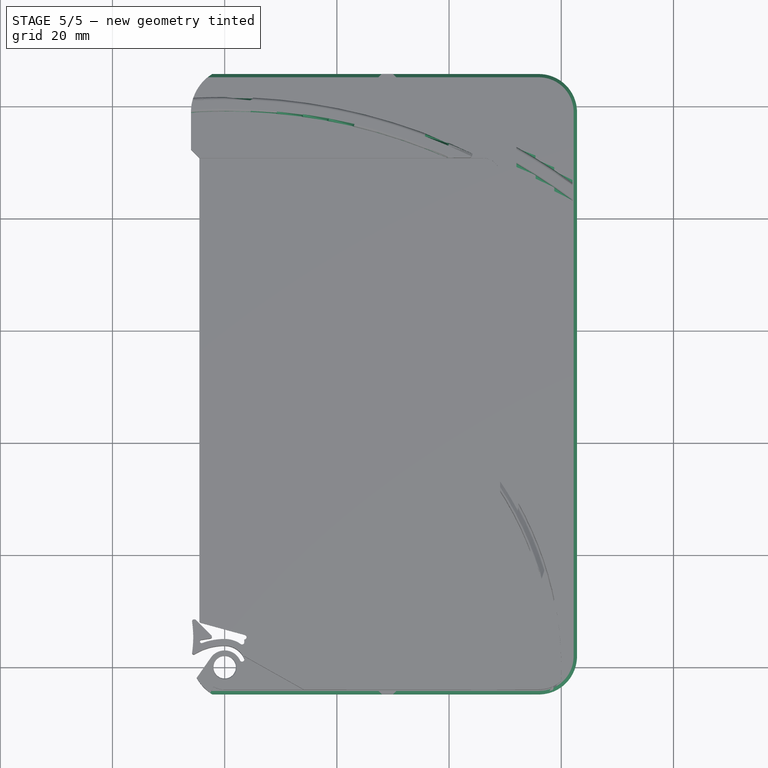
[diagram: stage 5 of 5 — top view after this stage's code; geometry added in this stage tinted green]
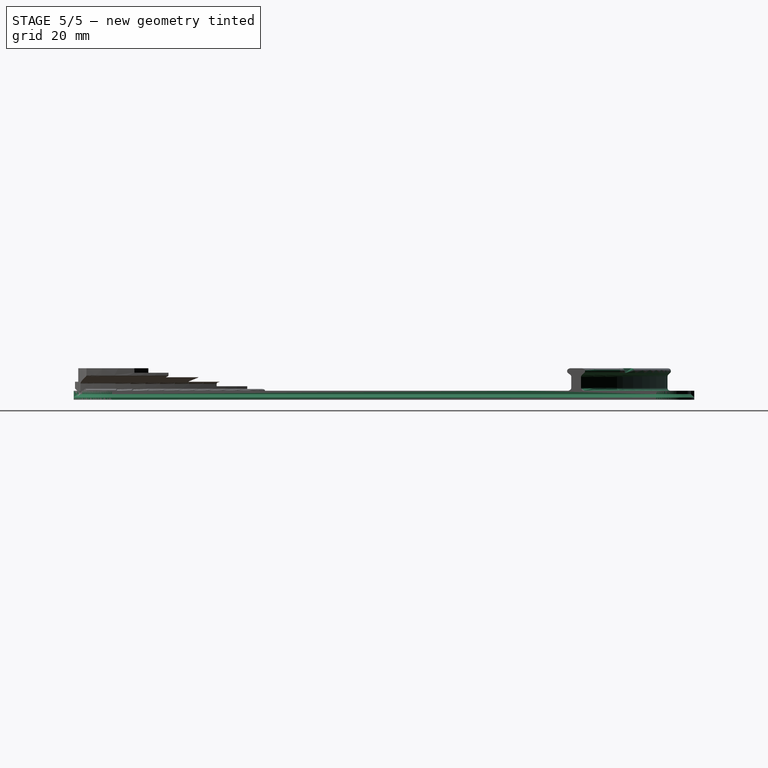
[diagram: stage 5 of 5 — right view after this stage's code; geometry added in this stage tinted green]
FEATURE [PartDesign::SubtractivePipe] SubtractivePipe
  AuxilleryCurvelinear = true
  AuxillerySpineTangent = false
  BaseFeature = -> Groove001
  Binormal = (0,0,0)
  Mode = 0
  Profile = -> Sketch017
  Spine = -> Sketch019
  SpineTangent = false
  Transformation = 0
  Transition = 0
FEATURE [PartDesign::Pad] Pad003
  BaseFeature = -> SubtractivePipe
  Direction = (0,0,1)
  Length = 1.6
  Length2 = 10
  Profile = -> Sketch018
  ReferenceAxis = -> Sketch018 [N_Axis]
  Type = 0
  expr: Length = <<vars>>.module_separator_wall + <<vars>>.cc_thickness
FEATURE [PartDesign::Groove] Groove002
  Angle = 360
  Axis = (-2e-16,3e-16,1)
  Base = (0,0,0)
  BaseFeature = -> Pad003
  Profile = -> Sketch012
  ReferenceAxis = -> Sketch012 [V_Axis]
FEATURE [PartDesign::Body] Body
  Group = -> [LCS_001,Sketch,Sketch001,Pad,Sketch002,Sketch003,Pocket,Pocket001,Sketch004,Sketch005,Sketch006,Sketch007,Pocket002,Pocket003,Pocket004,Pocket005,Sketch009,Pocket006,Sketch010,Pocket007,Sketch011,Groove,Sketch012,Sketch013,Pocket008,Sketch014,Pad001,Sketch015,Pad002,Sketch016,Groove001,Sketch017,Sketch018,Sketch019,SubtractivePipe,Pad003,Groove002]
  Origin = -> Origin002
  Tip = -> Groove002
FEATURE [App::Part] Part
  Group = -> [LCS_0,Body]
  Origin = -> Origin001
FEATURE [App::Part] Assembly
  AssemblyType = Part::Link
  Group = -> [LCS_Origin,Constraints,Variables,Configurations,Part]
  Origin = -> Origin
  Type = Assembly
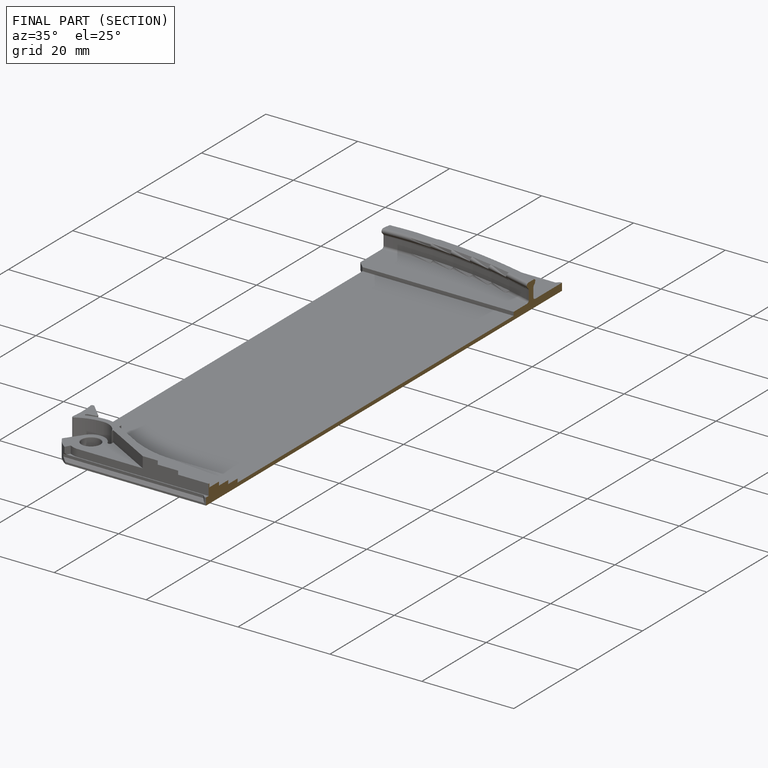
[diagram: finished part — half-section view (interior)]
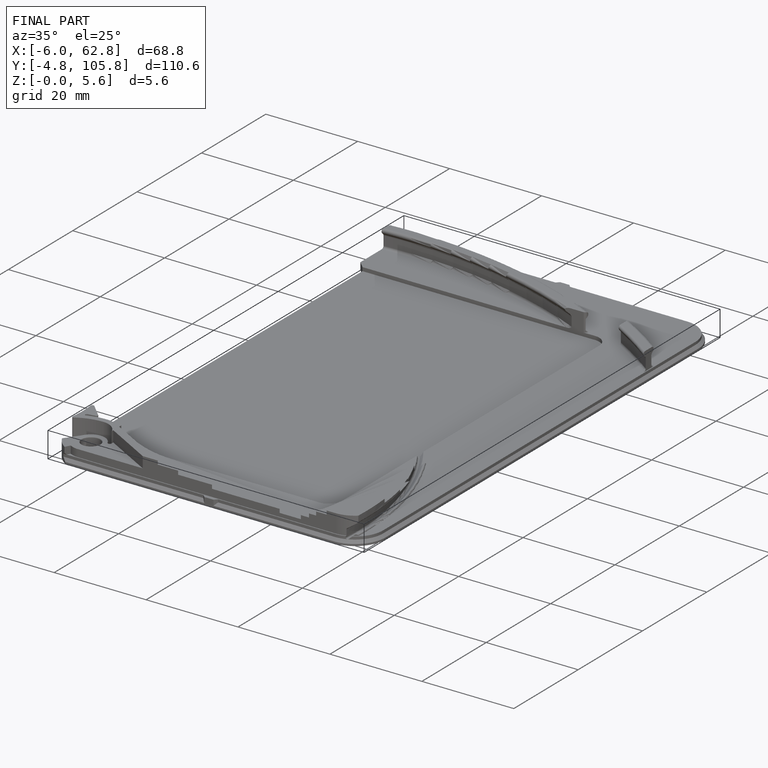
[diagram: finished part — iso view with bounding-box wireframe]
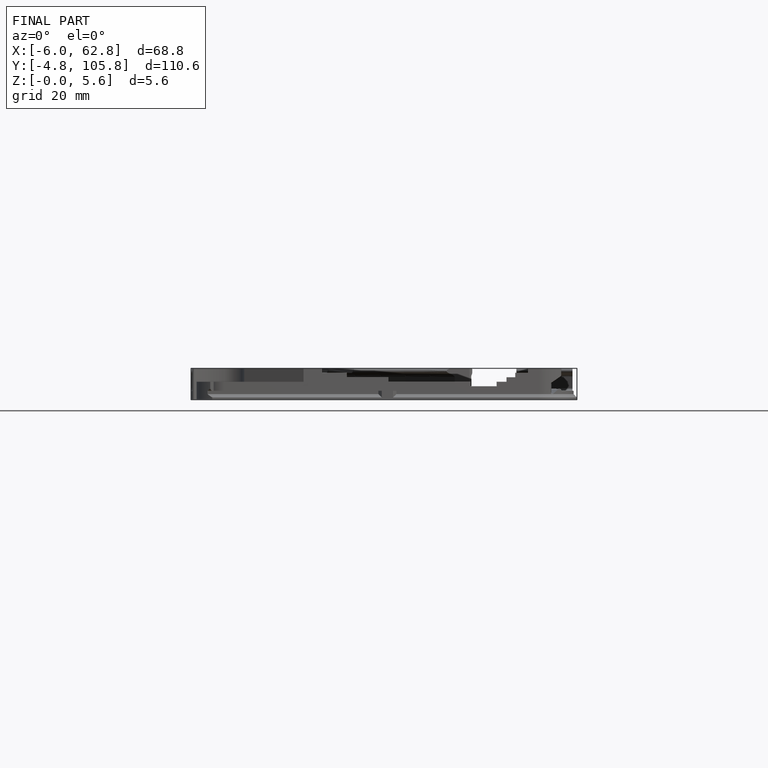
[diagram: finished part — front view with bounding-box wireframe]
